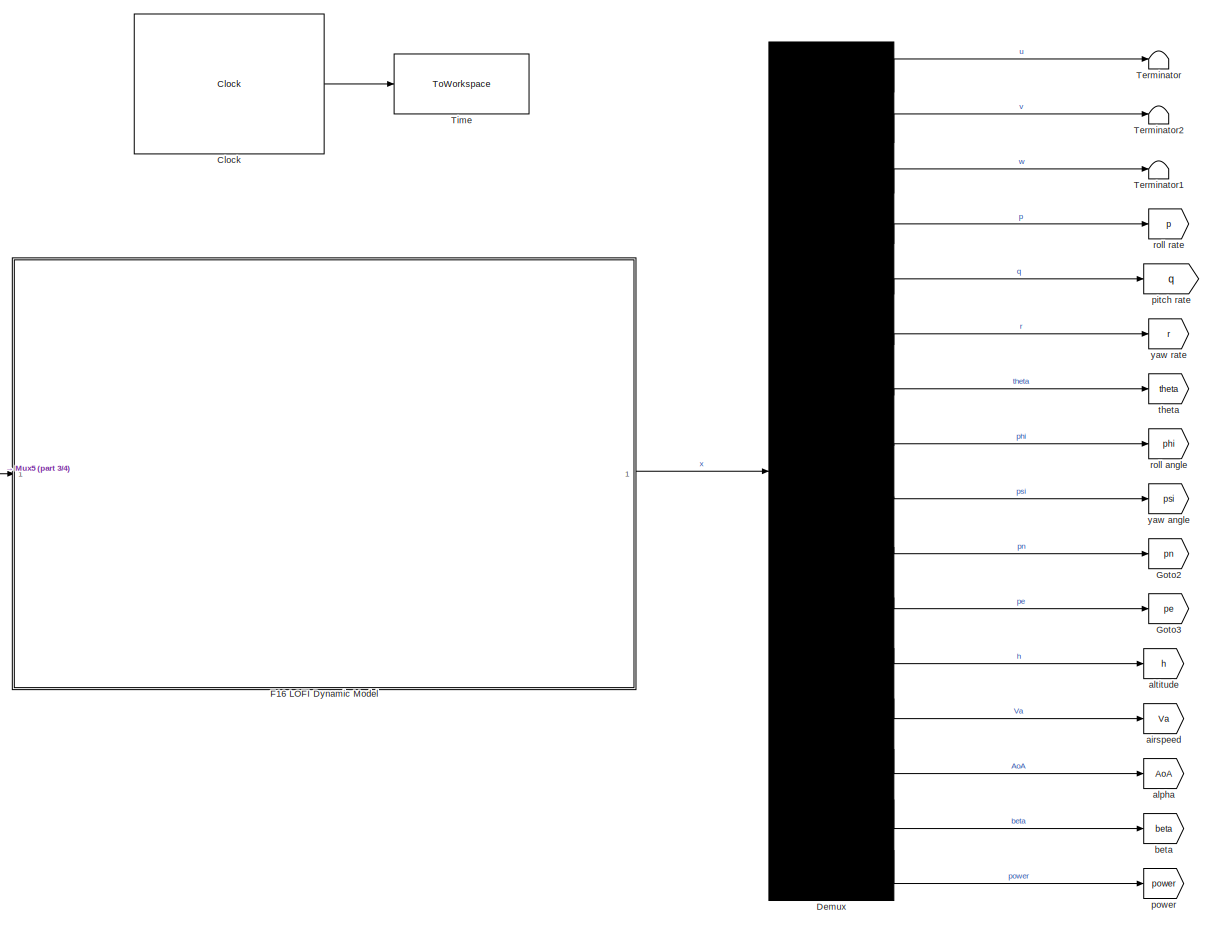
[diagram: root canvas - part 1/4, central region]
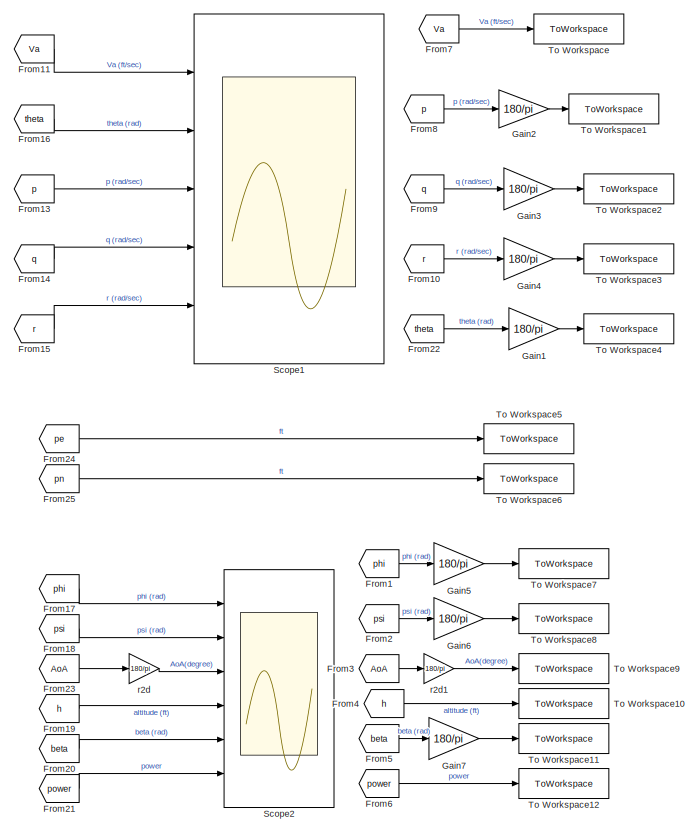
[diagram: root canvas - part 2/4, middle right region]
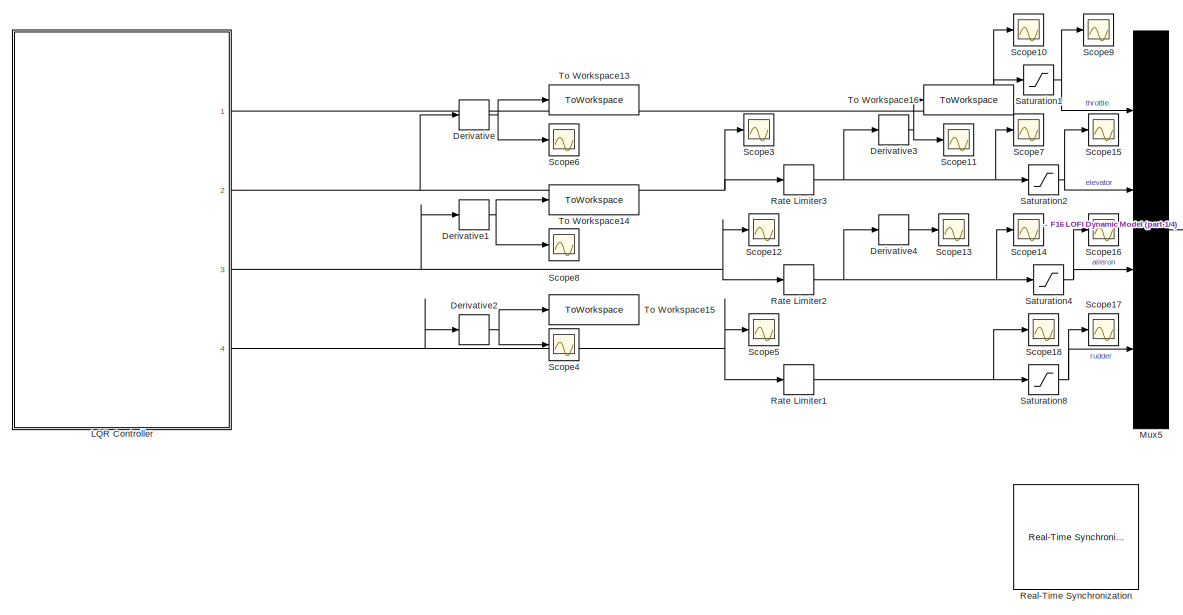
[diagram: root canvas - part 3/4, middle left region]
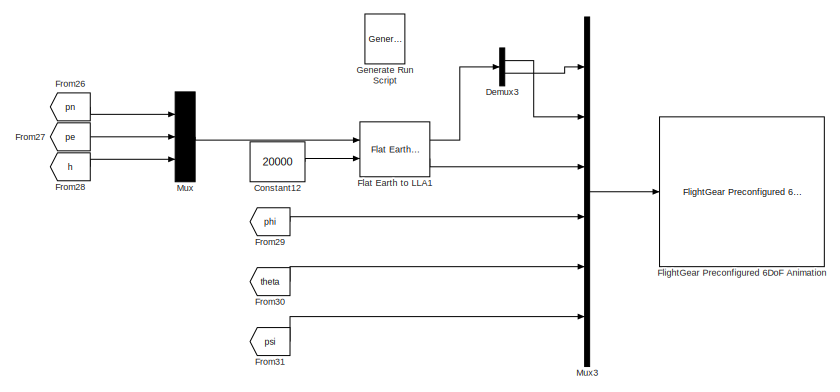
[diagram: root canvas - part 4/4, bottom center region]
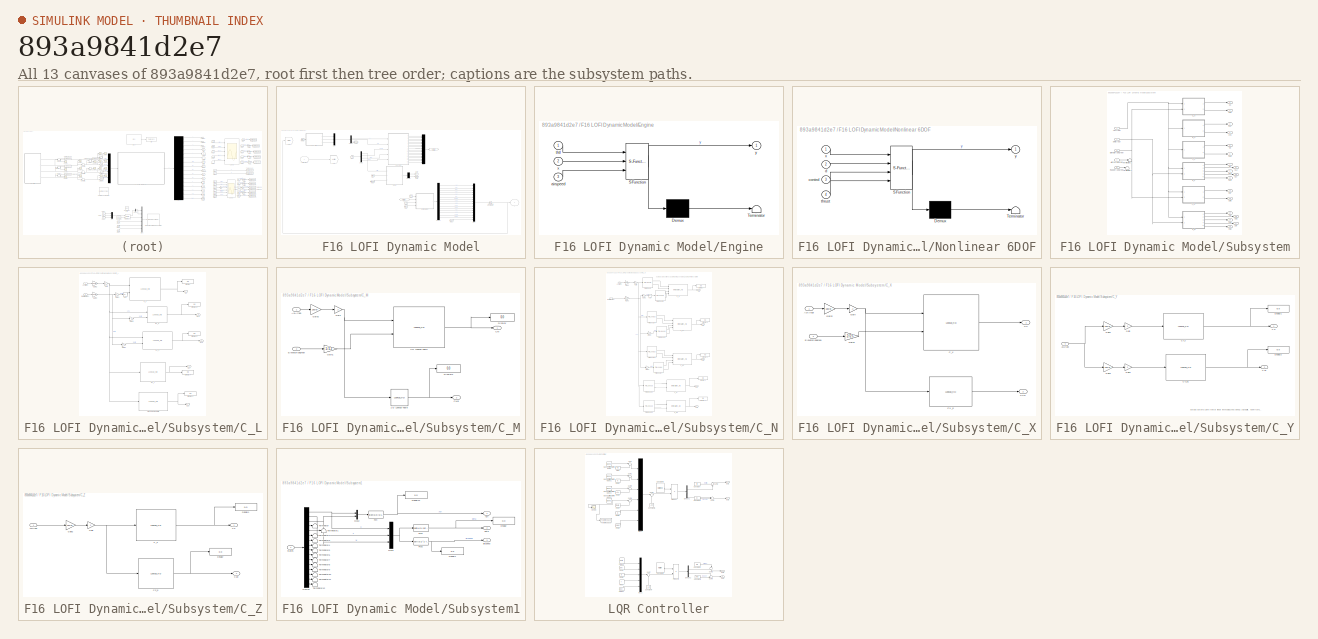
[diagram: thumbnail index - all 13 canvases of the model, root first then tree order]
MODEL slx_893a9841d2e7
KIND model
CONFIG AbsTol = auto
CONFIG EnableMultiTasking = off
CONFIG FixedStep = auto
CONFIG MaxStep = auto
CONFIG MinStep = auto
CONFIG RelTol = 1e-3
CONFIG SampleTimeConstraint = Unconstrained
CONFIG SolverName = VariableStepAuto
CONFIG StartTime = 0.0
CONFIG StopTime = 50
WORKSPACE source: mxarray member
WORKSPACE op_trim2: opcond.OperatingReport (value not decoded)
BLOCK [Clock] Clock
  Decimation = 50
  DisplayTime = on
BLOCK [Constant] Constant12
  Commented = on
  Value = 20000
BLOCK [Demux] Demux
  Outputs = 16
  Ports = [1, 16]
BLOCK [Demux] Demux3
  Commented = on
  Outputs = 2
  Ports = [1, 2]
BLOCK [Derivative] Derivative
BLOCK [Derivative] Derivative1
BLOCK [Derivative] Derivative2
BLOCK [Derivative] Derivative3
BLOCK [Derivative] Derivative4
BLOCK [SubSystem] F16 LOFI Dynamic Model
  Ports = [1, 1]
  RequestExecContextInheritance = off
BLOCK [Demux] F16 LOFI Dynamic Model/Demux
  Ports = [1, 4]
BLOCK [Demux] F16 LOFI Dynamic Model/Demux1
  Outputs = 3
  Ports = [1, 3]
BLOCK [Demux] F16 LOFI Dynamic Model/Demux2
  Outputs = 15
  Ports = [1, 15]
BLOCK [Demux] F16 LOFI Dynamic Model/Demux3
  Outputs = 2
  Ports = [1, 2]
BLOCK [SubSystem] F16 LOFI Dynamic Model/Engine
  ErrorFcn = Stateflow.Translate.translate
  PermitHierarchicalResolution = ExplicitOnly
  Ports = [3, 1]
  RequestExecContextInheritance = off
  SFBlockType = MATLAB Function
  TreatAsAtomicUnit = on
BLOCK [Demux] F16 LOFI Dynamic Model/Engine/ Demux 
  Outputs = 1
  Ports = [1, 1]
BLOCK [S-Function] F16 LOFI Dynamic Model/Engine/ SFunction 
  EnableBusSupport = on
  FunctionName = sf_sfun
  PortCounts = [3 2]
  Ports = [3, 2]
  SFcnIsStateOwnerBlock = off
  SFunctionDeploymentMode = off
  Tag = Stateflow S-Function 1
BLOCK [Terminator] F16 LOFI Dynamic Model/Engine/ Terminator 
BLOCK [Inport] F16 LOFI Dynamic Model/Engine/airspeed
  Port = 3
BLOCK [Inport] F16 LOFI Dynamic Model/Engine/thtl
BLOCK [Inport] F16 LOFI Dynamic Model/Engine/x
  Port = 2
BLOCK [Outport] F16 LOFI Dynamic Model/Engine/y
BLOCK [From] F16 LOFI Dynamic Model/From
  GotoTag = control
BLOCK [From] F16 LOFI Dynamic Model/From1
  GotoTag = control
BLOCK [From] F16 LOFI Dynamic Model/From11
  GotoTag = states
BLOCK [From] F16 LOFI Dynamic Model/From12
  GotoTag = powdot
BLOCK [From] F16 LOFI Dynamic Model/From3
  GotoTag = derivatives
BLOCK [From] F16 LOFI Dynamic Model/From6
  GotoTag = states
BLOCK [From] F16 LOFI Dynamic Model/From7
  GotoTag = states
BLOCK [From] F16 LOFI Dynamic Model/From8
  GotoTag = thrust
BLOCK [From] F16 LOFI Dynamic Model/From9
  GotoTag = airspeed
BLOCK [Goto] F16 LOFI Dynamic Model/Goto1
  GotoTag = derivatives
BLOCK [Goto] F16 LOFI Dynamic Model/Goto3
  GotoTag = states
BLOCK [Goto] F16 LOFI Dynamic Model/Goto4
  GotoTag = thrust
BLOCK [Goto] F16 LOFI Dynamic Model/Goto5
  GotoTag = airspeed
BLOCK [Goto] F16 LOFI Dynamic Model/Goto6
  GotoTag = powdot
BLOCK [Integrator] F16 LOFI Dynamic Model/Integrator ; u ; v ; w ; p ; q ; r ; theta ; phi ; psi ; pn ; pe ; h ; Va ; AoA ; beta ; power
  InitialCondition = state_init
  Ports = [1, 1]
BLOCK [Mux] F16 LOFI Dynamic Model/Mux
  DisplayOption = bar
  Inputs = 18
  Ports = [18, 1]
BLOCK [Mux] F16 LOFI Dynamic Model/Mux1
  DisplayOption = bar
  Inputs = 16
  Ports = [16, 1]
BLOCK [Mux] F16 LOFI Dynamic Model/Mux4
  DisplayOption = bar
  Inputs = 3
  Ports = [3, 1]
BLOCK [SubSystem] F16 LOFI Dynamic Model/Nonlinear 6DOF
  ErrorFcn = Stateflow.Translate.translate
  PermitHierarchicalResolution = ExplicitOnly
  Ports = [4, 1]
  RequestExecContextInheritance = off
  SFBlockType = MATLAB Function
  TreatAsAtomicUnit = on
BLOCK [Demux] F16 LOFI Dynamic Model/Nonlinear 6DOF/ Demux 
  Outputs = 1
  Ports = [1, 1]
BLOCK [S-Function] F16 LOFI Dynamic Model/Nonlinear 6DOF/ SFunction 
  EnableBusSupport = on
  FunctionName = sf_sfun
  PortCounts = [4 2]
  Ports = [4, 2]
  SFcnIsStateOwnerBlock = off
  SFunctionDeploymentMode = off
  Tag = Stateflow S-Function 2
BLOCK [Terminator] F16 LOFI Dynamic Model/Nonlinear 6DOF/ Terminator 
BLOCK [Inport] F16 LOFI Dynamic Model/Nonlinear 6DOF/control
  Port = 3
BLOCK [Inport] F16 LOFI Dynamic Model/Nonlinear 6DOF/d
  Port = 2
BLOCK [Inport] F16 LOFI Dynamic Model/Nonlinear 6DOF/thrust
  Port = 4
BLOCK [Inport] F16 LOFI Dynamic Model/Nonlinear 6DOF/x
BLOCK [Outport] F16 LOFI Dynamic Model/Nonlinear 6DOF/y
BLOCK [SubSystem] F16 LOFI Dynamic Model/Subsystem
  Ports = [5, 18]
  RequestExecContextInheritance = off
BLOCK [Inport] F16 LOFI Dynamic Model/Subsystem/Aileron(degree)
  Port = 4
BLOCK [Inport] F16 LOFI Dynamic Model/Subsystem/AoA(rad)
BLOCK [Outport] F16 LOFI Dynamic Model/Subsystem/CL
  Port = 7
BLOCK [Outport] F16 LOFI Dynamic Model/Subsystem/CL2
  Port = 8
BLOCK [Outport] F16 LOFI Dynamic Model/Subsystem/CL3
  Port = 9
BLOCK [Outport] F16 LOFI Dynamic Model/Subsystem/CLp
  Port = 11
BLOCK [Outport] F16 LOFI Dynamic Model/Subsystem/CLr
  Port = 10
BLOCK [Outport] F16 LOFI Dynamic Model/Subsystem/CM
  Port = 12
BLOCK [Outport] F16 LOFI Dynamic Model/Subsystem/CMq
  Port = 13
BLOCK [Outport] F16 LOFI Dynamic Model/Subsystem/CN
  Port = 14
BLOCK [Outport] F16 LOFI Dynamic Model/Subsystem/CN2
  Port = 15
BLOCK [Outport] F16 LOFI Dynamic Model/Subsystem/CN3
  Port = 16
BLOCK [Outport] F16 LOFI Dynamic Model/Subsystem/CNp
  Port = 18
BLOCK [Outport] F16 LOFI Dynamic Model/Subsystem/CNr
  Port = 17
BLOCK [Outport] F16 LOFI Dynamic Model/Subsystem/CX
BLOCK [Outport] F16 LOFI Dynamic Model/Subsystem/CXq
  Port = 2
BLOCK [Outport] F16 LOFI Dynamic Model/Subsystem/CYp
  Port = 4
BLOCK [Outport] F16 LOFI Dynamic Model/Subsystem/CYr
  Port = 3
BLOCK [Outport] F16 LOFI Dynamic Model/Subsystem/CZ
  Port = 5
BLOCK [Outport] F16 LOFI Dynamic Model/Subsystem/CZq
  Port = 6
BLOCK [SubSystem] F16 LOFI Dynamic Model/Subsystem/C_L
  Ports = [2, 5]
  RequestExecContextInheritance = off
BLOCK [Lookup_n-D] F16 LOFI Dynamic Model/Subsystem/C_L/1-D Lookup Table
  BreakpointsForDimension1 = [-2:9]
  InputPortMap = u0
  InternalRulePriority = Speed
  NumberOfTableDimensions = 1
  Ports = [1, 1]
  RndMeth = Simplest
  Table = CLp
BLOCK [Abs] F16 LOFI Dynamic Model/Subsystem/C_L/Abs
  SaturateOnIntegerOverflow = off
BLOCK [Inport] F16 LOFI Dynamic Model/Subsystem/C_L/AoA(rad)
BLOCK [Inport] F16 LOFI Dynamic Model/Subsystem/C_L/Beta(radian)
  Port = 2
BLOCK [Outport] F16 LOFI Dynamic Model/Subsystem/C_L/CL
BLOCK [Outport] F16 LOFI Dynamic Model/Subsystem/C_L/CL2
  Port = 2
BLOCK [Outport] F16 LOFI Dynamic Model/Subsystem/C_L/CL3
  Port = 3
BLOCK [Lookup_n-D] F16 LOFI Dynamic Model/Subsystem/C_L/CL_2
  BreakpointsForDimension1 = [-2:9]
  BreakpointsForDimension2 = [-3:3]
  InputPortMap = u0,u1
  InternalRulePriority = Speed
  Ports = [2, 1]
  RndMeth = Simplest
  Table = CL2
BLOCK [Lookup_n-D] F16 LOFI Dynamic Model/Subsystem/C_L/CL_3
  BreakpointsForDimension1 = [-2:9]
  BreakpointsForDimension2 = [-3:3]
  InputPortMap = u0,u1
  InternalRulePriority = Speed
  Ports = [2, 1]
  RndMeth = Simplest
  Table = CL3
BLOCK [Lookup_n-D] F16 LOFI Dynamic Model/Subsystem/C_L/CL_r
  BreakpointsForDimension1 = [-2:9]
  InputPortMap = u0
  InternalRulePriority = Speed
  NumberOfTableDimensions = 1
  Ports = [1, 1]
  RndMeth = Simplest
  Table = CLr
BLOCK [Outport] F16 LOFI Dynamic Model/Subsystem/C_L/CLp
  Port = 5
BLOCK [Outport] F16 LOFI Dynamic Model/Subsystem/C_L/CLr
  Port = 4
BLOCK [Lookup_n-D] F16 LOFI Dynamic Model/Subsystem/C_L/C_L
  BreakpointsForDimension1 = [-2:9]
  BreakpointsForDimension2 = [0:6]
  InputPortMap = u0,u1
  InternalRulePriority = Speed
  Ports = [2, 1]
  RndMeth = Simplest
  Table = CL
BLOCK [Display] F16 LOFI Dynamic Model/Subsystem/C_L/Display
  Decimation = 1
  Ports = [1]
BLOCK [Display] F16 LOFI Dynamic Model/Subsystem/C_L/Display1
  Decimation = 1
  Ports = [1]
BLOCK [Display] F16 LOFI Dynamic Model/Subsystem/C_L/Display3
  Decimation = 1
  Ports = [1]
BLOCK [Display] F16 LOFI Dynamic Model/Subsystem/C_L/Display4
  Decimation = 1
  Ports = [1]
BLOCK [Display] F16 LOFI Dynamic Model/Subsystem/C_L/Display5
  Decimation = 1
  Ports = [1]
BLOCK [Gain] F16 LOFI Dynamic Model/Subsystem/C_L/Gain
  Gain = .2
BLOCK [Gain] F16 LOFI Dynamic Model/Subsystem/C_L/Gain1
  Gain = .2
BLOCK [Gain] F16 LOFI Dynamic Model/Subsystem/C_L/Gain2
  Gain = 180/pi
BLOCK [Gain] F16 LOFI Dynamic Model/Subsystem/C_L/Gain3
  Gain = 180/pi
BLOCK [Gain] F16 LOFI Dynamic Model/Subsystem/C_L/Gain4
  Gain = .1
BLOCK [Gain] F16 LOFI Dynamic Model/Subsystem/C_L/Gain5
  Gain = .1
BLOCK [SubSystem] F16 LOFI Dynamic Model/Subsystem/C_M
  Ports = [2, 2]
  RequestExecContextInheritance = off
BLOCK [Lookup_n-D] F16 LOFI Dynamic Model/Subsystem/C_M/1-D Lookup Table
  BreakpointsForDimension1 = [-2:9]
  InputPortMap = u0
  InternalRulePriority = Speed
  NumberOfTableDimensions = 1
  Ports = [1, 1]
  RndMeth = Simplest
  Table = CMq
BLOCK [Lookup_n-D] F16 LOFI Dynamic Model/Subsystem/C_M/2-D Lookup Table
  BreakpointsForDimension1 = [-2:9]
  BreakpointsForDimension2 = [-2:2]
  InputPortMap = u0,u1
  InternalRulePriority = Speed
  Ports = [2, 1]
  RndMeth = Simplest
  Table = CM
BLOCK [Inport] F16 LOFI Dynamic Model/Subsystem/C_M/AoA(rad)
BLOCK [Outport] F16 LOFI Dynamic Model/Subsystem/C_M/CM
BLOCK [Outport] F16 LOFI Dynamic Model/Subsystem/C_M/CMq
  Port = 2
BLOCK [Display] F16 LOFI Dynamic Model/Subsystem/C_M/Display
  Decimation = 1
  Ports = [1]
BLOCK [Display] F16 LOFI Dynamic Model/Subsystem/C_M/Display2
  Decimation = 1
  Ports = [1]
BLOCK [Inport] F16 LOFI Dynamic Model/Subsystem/C_M/Elevator(degree)
  Port = 2
BLOCK [Gain] F16 LOFI Dynamic Model/Subsystem/C_M/Gain
  Gain = .2
BLOCK [Gain] F16 LOFI Dynamic Model/Subsystem/C_M/Gain1
  Gain = 1/12
BLOCK [Gain] F16 LOFI Dynamic Model/Subsystem/C_M/Gain2
  Gain = 180/pi
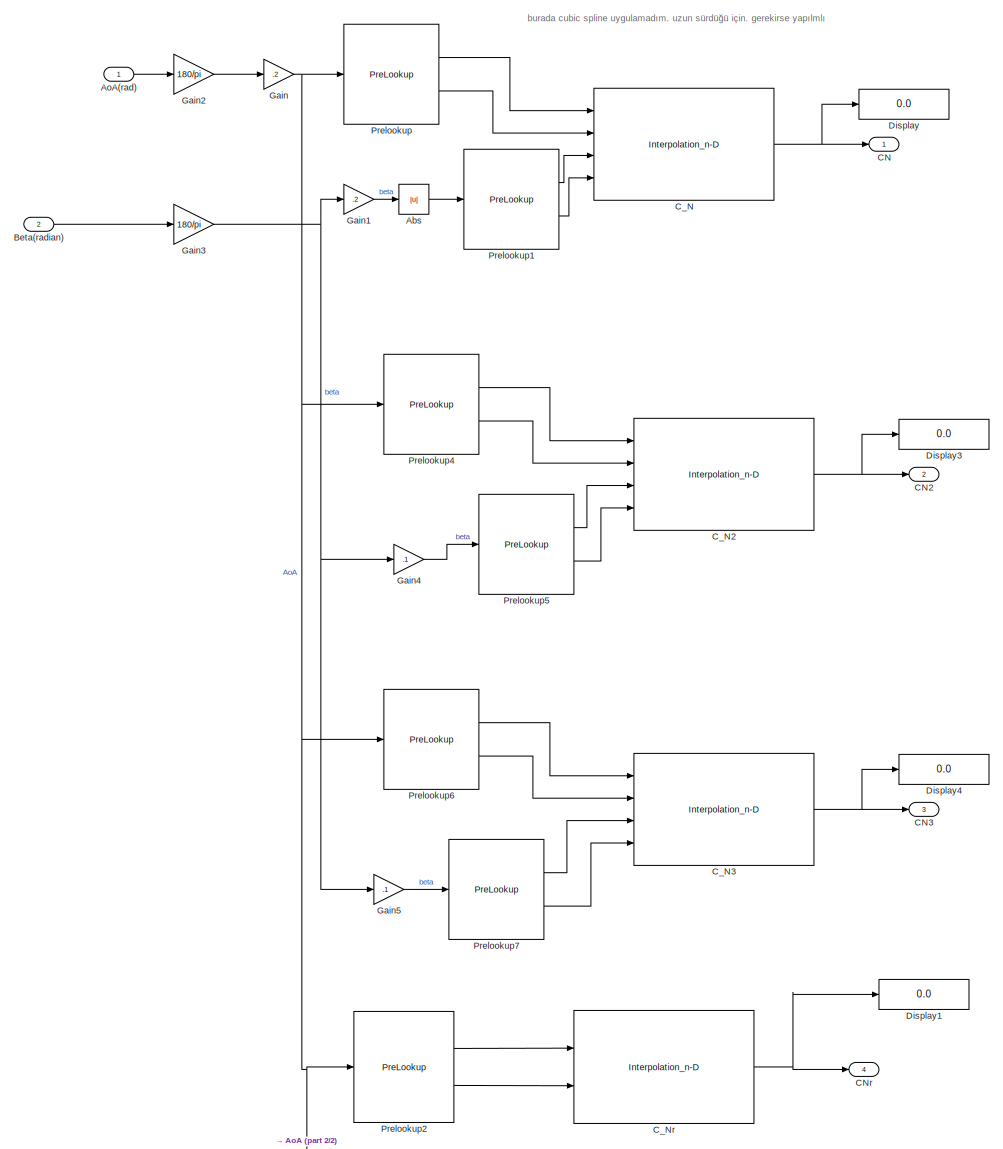
[diagram: F16 LOFI Dynamic Model/Subsystem/C_N - part 1/2, most of the canvas]
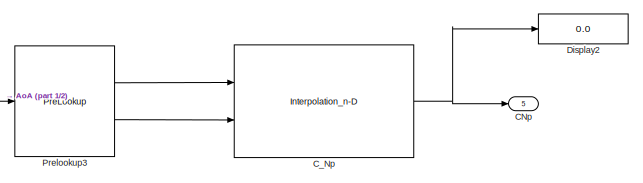
[diagram: F16 LOFI Dynamic Model/Subsystem/C_N - part 2/2, bottom center region]
BLOCK [SubSystem] F16 LOFI Dynamic Model/Subsystem/C_N
  Ports = [2, 5]
  RequestExecContextInheritance = off
BLOCK [Abs] F16 LOFI Dynamic Model/Subsystem/C_N/Abs
  SaturateOnIntegerOverflow = off
BLOCK [Inport] F16 LOFI Dynamic Model/Subsystem/C_N/AoA(rad)
BLOCK [Inport] F16 LOFI Dynamic Model/Subsystem/C_N/Beta(radian)
  Port = 2
BLOCK [Outport] F16 LOFI Dynamic Model/Subsystem/C_N/CN
BLOCK [Outport] F16 LOFI Dynamic Model/Subsystem/C_N/CN2
  Port = 2
BLOCK [Outport] F16 LOFI Dynamic Model/Subsystem/C_N/CN3
  Port = 3
BLOCK [Outport] F16 LOFI Dynamic Model/Subsystem/C_N/CNp
  Port = 5
BLOCK [Outport] F16 LOFI Dynamic Model/Subsystem/C_N/CNr
  Port = 4
BLOCK [Interpolation_n-D] F16 LOFI Dynamic Model/Subsystem/C_N/C_N
  InputPortMap = u0,u1,u2,u3
  IntermediateResultsDataTypeStr = Inherit: Inherit via internal rule
  InternalRulePriority = Speed
  Ports = [4, 1]
  Table = CN
BLOCK [Interpolation_n-D] F16 LOFI Dynamic Model/Subsystem/C_N/C_N2
  InputPortMap = u0,u1,u2,u3
  IntermediateResultsDataTypeStr = Inherit: Inherit via internal rule
  InternalRulePriority = Speed
  Ports = [4, 1]
  Table = CN2
BLOCK [Interpolation_n-D] F16 LOFI Dynamic Model/Subsystem/C_N/C_N3
  InputPortMap = u0,u1,u2,u3
  IntermediateResultsDataTypeStr = Inherit: Inherit via internal rule
  InternalRulePriority = Speed
  Ports = [4, 1]
  Table = CN3
BLOCK [Interpolation_n-D] F16 LOFI Dynamic Model/Subsystem/C_N/C_Np
  InputPortMap = u0,u1
  IntermediateResultsDataTypeStr = Inherit: Inherit via internal rule
  InternalRulePriority = Speed
  NumberOfTableDimensions = 1
  Ports = [2, 1]
  Table = CNp
BLOCK [Interpolation_n-D] F16 LOFI Dynamic Model/Subsystem/C_N/C_Nr
  InputPortMap = u0,u1
  IntermediateResultsDataTypeStr = Inherit: Inherit via internal rule
  InternalRulePriority = Speed
  NumberOfTableDimensions = 1
  Ports = [2, 1]
  Table = CNr
BLOCK [Display] F16 LOFI Dynamic Model/Subsystem/C_N/Display
  Decimation = 1
  Ports = [1]
BLOCK [Display] F16 LOFI Dynamic Model/Subsystem/C_N/Display1
  Decimation = 1
  Ports = [1]
BLOCK [Display] F16 LOFI Dynamic Model/Subsystem/C_N/Display2
  Decimation = 1
  Ports = [1]
BLOCK [Display] F16 LOFI Dynamic Model/Subsystem/C_N/Display3
  Decimation = 1
  Ports = [1]
BLOCK [Display] F16 LOFI Dynamic Model/Subsystem/C_N/Display4
  Decimation = 1
  Ports = [1]
BLOCK [Gain] F16 LOFI Dynamic Model/Subsystem/C_N/Gain
  Gain = .2
BLOCK [Gain] F16 LOFI Dynamic Model/Subsystem/C_N/Gain1
  Gain = .2
BLOCK [Gain] F16 LOFI Dynamic Model/Subsystem/C_N/Gain2
  Gain = 180/pi
BLOCK [Gain] F16 LOFI Dynamic Model/Subsystem/C_N/Gain3
  Gain = 180/pi
BLOCK [Gain] F16 LOFI Dynamic Model/Subsystem/C_N/Gain4
  Gain = .1
BLOCK [Gain] F16 LOFI Dynamic Model/Subsystem/C_N/Gain5
  Gain = .1
BLOCK [PreLookup] F16 LOFI Dynamic Model/Subsystem/C_N/Prelookup
  BreakpointsData = AoA
  ExtrapMethod = Linear
  InputPortMap = u0
  Ports = [1, 2]
BLOCK [PreLookup] F16 LOFI Dynamic Model/Subsystem/C_N/Prelookup1
  BreakpointsData = beta
  ExtrapMethod = Linear
  InputPortMap = u0
  Ports = [1, 2]
BLOCK [PreLookup] F16 LOFI Dynamic Model/Subsystem/C_N/Prelookup2
  BreakpointsData = AoA
  ExtrapMethod = Linear
  InputPortMap = u0
  Ports = [1, 2]
BLOCK [PreLookup] F16 LOFI Dynamic Model/Subsystem/C_N/Prelookup3
  BreakpointsData = AoA
  ExtrapMethod = Linear
  InputPortMap = u0
  Ports = [1, 2]
BLOCK [PreLookup] F16 LOFI Dynamic Model/Subsystem/C_N/Prelookup4
  BreakpointsData = AoA
  ExtrapMethod = Linear
  InputPortMap = u0
  Ports = [1, 2]
BLOCK [PreLookup] F16 LOFI Dynamic Model/Subsystem/C_N/Prelookup5
  BreakpointsData = [-3:3]
  ExtrapMethod = Linear
  InputPortMap = u0
  Ports = [1, 2]
BLOCK [PreLookup] F16 LOFI Dynamic Model/Subsystem/C_N/Prelookup6
  BreakpointsData = AoA
  ExtrapMethod = Linear
  InputPortMap = u0
  Ports = [1, 2]
BLOCK [PreLookup] F16 LOFI Dynamic Model/Subsystem/C_N/Prelookup7
  BreakpointsData = [-3:3]
  ExtrapMethod = Linear
  InputPortMap = u0
  Ports = [1, 2]
BLOCK [SubSystem] F16 LOFI Dynamic Model/Subsystem/C_X
  Ports = [2, 2]
  RequestExecContextInheritance = off
BLOCK [Inport] F16 LOFI Dynamic Model/Subsystem/C_X/AoA(rad)
BLOCK [Outport] F16 LOFI Dynamic Model/Subsystem/C_X/CX
BLOCK [Lookup_n-D] F16 LOFI Dynamic Model/Subsystem/C_X/CX_q
  BreakpointsForDimension1 = [-2:9]
  InputPortMap = u0
  InternalRulePriority = Speed
  NumberOfTableDimensions = 1
  Ports = [1, 1]
  RndMeth = Simplest
  Table = CXq
BLOCK [Outport] F16 LOFI Dynamic Model/Subsystem/C_X/CXq
  Port = 2
BLOCK [Lookup_n-D] F16 LOFI Dynamic Model/Subsystem/C_X/C_X
  BreakpointsForDimension1 = [-2:9]
  BreakpointsForDimension2 = [-2:2]
  InputPortMap = u0,u1
  InternalRulePriority = Speed
  Ports = [2, 1]
  RndMeth = Simplest
  Table = CX
BLOCK [Inport] F16 LOFI Dynamic Model/Subsystem/C_X/Elevator(degree)
  Port = 2
BLOCK [Gain] F16 LOFI Dynamic Model/Subsystem/C_X/Gain
  Gain = .2
BLOCK [Gain] F16 LOFI Dynamic Model/Subsystem/C_X/Gain1
  Gain = 2/25
BLOCK [Gain] F16 LOFI Dynamic Model/Subsystem/C_X/Gain2
  Gain = 180/pi
BLOCK [SubSystem] F16 LOFI Dynamic Model/Subsystem/C_Y
  Ports = [1, 2]
  RequestExecContextInheritance = off
BLOCK [Inport] F16 LOFI Dynamic Model/Subsystem/C_Y/AoA(rad)
BLOCK [Lookup_n-D] F16 LOFI Dynamic Model/Subsystem/C_Y/CY_p1
  BreakpointsForDimension1 = [-2:9]
  InputPortMap = u0
  InternalRulePriority = Speed
  NumberOfTableDimensions = 1
  Ports = [1, 1]
  RndMeth = Simplest
  Table = CYp
BLOCK [Lookup_n-D] F16 LOFI Dynamic Model/Subsystem/C_Y/CY_r
  BreakpointsForDimension1 = [-2:9]
  InputPortMap = u0
  InternalRulePriority = Speed
  NumberOfTableDimensions = 1
  Ports = [1, 1]
  RndMeth = Simplest
  Table = CYr
BLOCK [Outport] F16 LOFI Dynamic Model/Subsystem/C_Y/CYp
  Port = 2
BLOCK [Outport] F16 LOFI Dynamic Model/Subsystem/C_Y/CYr
BLOCK [Display] F16 LOFI Dynamic Model/Subsystem/C_Y/Display1
  Decimation = 1
  Ports = [1]
BLOCK [Display] F16 LOFI Dynamic Model/Subsystem/C_Y/Display2
  Decimation = 1
  Ports = [1]
BLOCK [Gain] F16 LOFI Dynamic Model/Subsystem/C_Y/Gain
  Gain = .2
BLOCK [Gain] F16 LOFI Dynamic Model/Subsystem/C_Y/Gain1
  Gain = .2
BLOCK [Gain] F16 LOFI Dynamic Model/Subsystem/C_Y/Gain2
  Gain = 180/pi
BLOCK [Gain] F16 LOFI Dynamic Model/Subsystem/C_Y/Gain3
  Gain = 180/pi
BLOCK [SubSystem] F16 LOFI Dynamic Model/Subsystem/C_Z
  Ports = [1, 2]
  RequestExecContextInheritance = off
BLOCK [Inport] F16 LOFI Dynamic Model/Subsystem/C_Z/AoA(rad)
BLOCK [Outport] F16 LOFI Dynamic Model/Subsystem/C_Z/CZ
BLOCK [Lookup_n-D] F16 LOFI Dynamic Model/Subsystem/C_Z/CZ_q
  BreakpointsForDimension1 = [-2:9]
  InputPortMap = u0
  InternalRulePriority = Speed
  NumberOfTableDimensions = 1
  Ports = [1, 1]
  RndMeth = Simplest
  Table = CZq
BLOCK [Outport] F16 LOFI Dynamic Model/Subsystem/C_Z/CZq
  Port = 2
BLOCK [Lookup_n-D] F16 LOFI Dynamic Model/Subsystem/C_Z/C_Z
  BreakpointsForDimension1 = [-2:9]
  InputPortMap = u0
  InternalRulePriority = Speed
  NumberOfTableDimensions = 1
  Ports = [1, 1]
  RndMeth = Simplest
  Table = CZ
BLOCK [Display] F16 LOFI Dynamic Model/Subsystem/C_Z/Display
  Decimation = 1
  Ports = [1]
BLOCK [Display] F16 LOFI Dynamic Model/Subsystem/C_Z/Display1
  Decimation = 1
  Ports = [1]
BLOCK [Gain] F16 LOFI Dynamic Model/Subsystem/C_Z/Gain
  Gain = .2
BLOCK [Gain] F16 LOFI Dynamic Model/Subsystem/C_Z/Gain2
  Gain = 180/pi
BLOCK [Inport] F16 LOFI Dynamic Model/Subsystem/Elevator(degree)
  Port = 3
BLOCK [Inport] F16 LOFI Dynamic Model/Subsystem/Rudder(degree)
  Port = 5
BLOCK [Terminator] F16 LOFI Dynamic Model/Subsystem/Terminator1
BLOCK [Terminator] F16 LOFI Dynamic Model/Subsystem/Terminator2
BLOCK [Inport] F16 LOFI Dynamic Model/Subsystem/beta(rad)
  Port = 2
BLOCK [SubSystem] F16 LOFI Dynamic Model/Subsystem1
  Ports = [1, 3]
  RequestExecContextInheritance = off
BLOCK [Outport] F16 LOFI Dynamic Model/Subsystem1/AoA
BLOCK [Demux] F16 LOFI Dynamic Model/Subsystem1/Demux
  Outputs = 16
  Ports = [1, 16]
BLOCK [Display] F16 LOFI Dynamic Model/Subsystem1/Display
  Decimation = 1
  Ports = [1]
BLOCK [Display] F16 LOFI Dynamic Model/Subsystem1/Display1
  Decimation = 1
  Ports = [1]
BLOCK [Display] F16 LOFI Dynamic Model/Subsystem1/Display13
  Decimation = 1
  Ports = [1]
BLOCK [Fcn] F16 LOFI Dynamic Model/Subsystem1/Fcn
  Expr = atan(u(2)/u(1))
  NameLocation = top
BLOCK [Fcn] F16 LOFI Dynamic Model/Subsystem1/Fcn1
  Expr = asin(u(2)/sqrt(u(1)^2 + u(2)^2 + u(3)^2))
BLOCK [Fcn] F16 LOFI Dynamic Model/Subsystem1/Fcn2
  Expr = sqrt(u(1)^2 + u(2)^2 + u(3)^2)
BLOCK [Mux] F16 LOFI Dynamic Model/Subsystem1/Mux2
  DisplayOption = bar
  Inputs = 2
  NameLocation = top
  Ports = [2, 1]
BLOCK [Mux] F16 LOFI Dynamic Model/Subsystem1/Mux3
  DisplayOption = bar
  Inputs = 3
  Ports = [3, 1]
BLOCK [Terminator] F16 LOFI Dynamic Model/Subsystem1/Terminator
BLOCK [Terminator] F16 LOFI Dynamic Model/Subsystem1/Terminator1
BLOCK [Terminator] F16 LOFI Dynamic Model/Subsystem1/Terminator10
BLOCK [Terminator] F16 LOFI Dynamic Model/Subsystem1/Terminator11
BLOCK [Terminator] F16 LOFI Dynamic Model/Subsystem1/Terminator12
BLOCK [Terminator] F16 LOFI Dynamic Model/Subsystem1/Terminator2
BLOCK [Terminator] F16 LOFI Dynamic Model/Subsystem1/Terminator3
BLOCK [Terminator] F16 LOFI Dynamic Model/Subsystem1/Terminator4
BLOCK [Terminator] F16 LOFI Dynamic Model/Subsystem1/Terminator5
BLOCK [Terminator] F16 LOFI Dynamic Model/Subsystem1/Terminator6
BLOCK [Terminator] F16 LOFI Dynamic Model/Subsystem1/Terminator7
BLOCK [Terminator] F16 LOFI Dynamic Model/Subsystem1/Terminator8
BLOCK [Terminator] F16 LOFI Dynamic Model/Subsystem1/Terminator9
BLOCK [Outport] F16 LOFI Dynamic Model/Subsystem1/airspeed
  Port = 3
BLOCK [Outport] F16 LOFI Dynamic Model/Subsystem1/beta
  Port = 2
BLOCK [Inport] F16 LOFI Dynamic Model/Subsystem1/states
BLOCK [Inport] F16 LOFI Dynamic Model/control surfaces
BLOCK [Goto] F16 LOFI Dynamic Model/goto
  GotoTag = control
BLOCK [Outport] F16 LOFI Dynamic Model/x
BLOCK [Reference] Flat Earth to LLA1  REF=aerolibtransform2/Flat Earth to LLA
  Commented = on
  Ports = [2, 2]
  SourceBlock = aerolibtransform2/Flat Earth to LLA
  SourceProductBaseCode = AE
  SourceType = Flat Earth to LLA
BLOCK [Reference] FlightGear Preconfigured 6DoF Animation  REF=aerolibfltsims/FlightGear
Preconfigured
6DoF Animation
  Commented = on
  Ports = [1]
  SourceBlock = aerolibfltsims/FlightGear\nPreconfigured\n6DoF Animation
  SourceProductBaseCode = AE
  SourceType = FlightGearQuick6DoFAnimation
BLOCK [From] From1
  GotoTag = phi
  TagVisibility = global
BLOCK [From] From10
  GotoTag = r
  TagVisibility = global
BLOCK [From] From11
  GotoTag = Va
  TagVisibility = global
BLOCK [From] From13
  GotoTag = p
  TagVisibility = global
BLOCK [From] From14
  GotoTag = q
  TagVisibility = global
BLOCK [From] From15
  GotoTag = r
  TagVisibility = global
BLOCK [From] From16
  GotoTag = theta
  TagVisibility = global
BLOCK [From] From17
  GotoTag = phi
  TagVisibility = global
BLOCK [From] From18
  GotoTag = psi
  TagVisibility = global
BLOCK [From] From19
  GotoTag = h
  TagVisibility = global
BLOCK [From] From2
  GotoTag = psi
  TagVisibility = global
BLOCK [From] From20
  GotoTag = beta
  TagVisibility = global
BLOCK [From] From21
  GotoTag = power
  TagVisibility = global
BLOCK [From] From22
  GotoTag = theta
  TagVisibility = global
BLOCK [From] From23
  GotoTag = AoA
  TagVisibility = global
BLOCK [From] From24
  GotoTag = pe
BLOCK [From] From25
  GotoTag = pn
BLOCK [From] From26
  Commented = on
  GotoTag = pn
BLOCK [From] From27
  Commented = on
  GotoTag = pe
BLOCK [From] From28
  Commented = on
  GotoTag = h
  TagVisibility = global
BLOCK [From] From29
  Commented = on
  GotoTag = phi
  TagVisibility = global
BLOCK [From] From3
  GotoTag = AoA
  TagVisibility = global
BLOCK [From] From30
  Commented = on
  GotoTag = theta
  TagVisibility = global
BLOCK [From] From31
  Commented = on
  GotoTag = psi
  TagVisibility = global
BLOCK [From] From4
  GotoTag = h
  TagVisibility = global
BLOCK [From] From5
  GotoTag = beta
  TagVisibility = global
BLOCK [From] From6
  GotoTag = power
  TagVisibility = global
BLOCK [From] From7
  GotoTag = Va
  TagVisibility = global
BLOCK [From] From8
  GotoTag = p
  TagVisibility = global
BLOCK [From] From9
  GotoTag = q
  TagVisibility = global
BLOCK [Gain] Gain1
  Gain = 180/pi
BLOCK [Gain] Gain2
  Gain = 180/pi
BLOCK [Gain] Gain3
  Gain = 180/pi
BLOCK [Gain] Gain4
  Gain = 180/pi
BLOCK [Gain] Gain5
  Gain = 180/pi
BLOCK [Gain] Gain6
  Gain = 180/pi
BLOCK [Gain] Gain7
  Gain = 180/pi
BLOCK [Reference] Generate Run Script  REF=aerolibfltsims/Generate
Run Script
  Commented = on
  Ports = []
  SourceBlock = aerolibfltsims/Generate\nRun Script
  SourceProductBaseCode = AE
  SourceType = Generate FlightGear Run Script
BLOCK [Goto] Goto2
  GotoTag = pn
BLOCK [Goto] Goto3
  GotoTag = pe
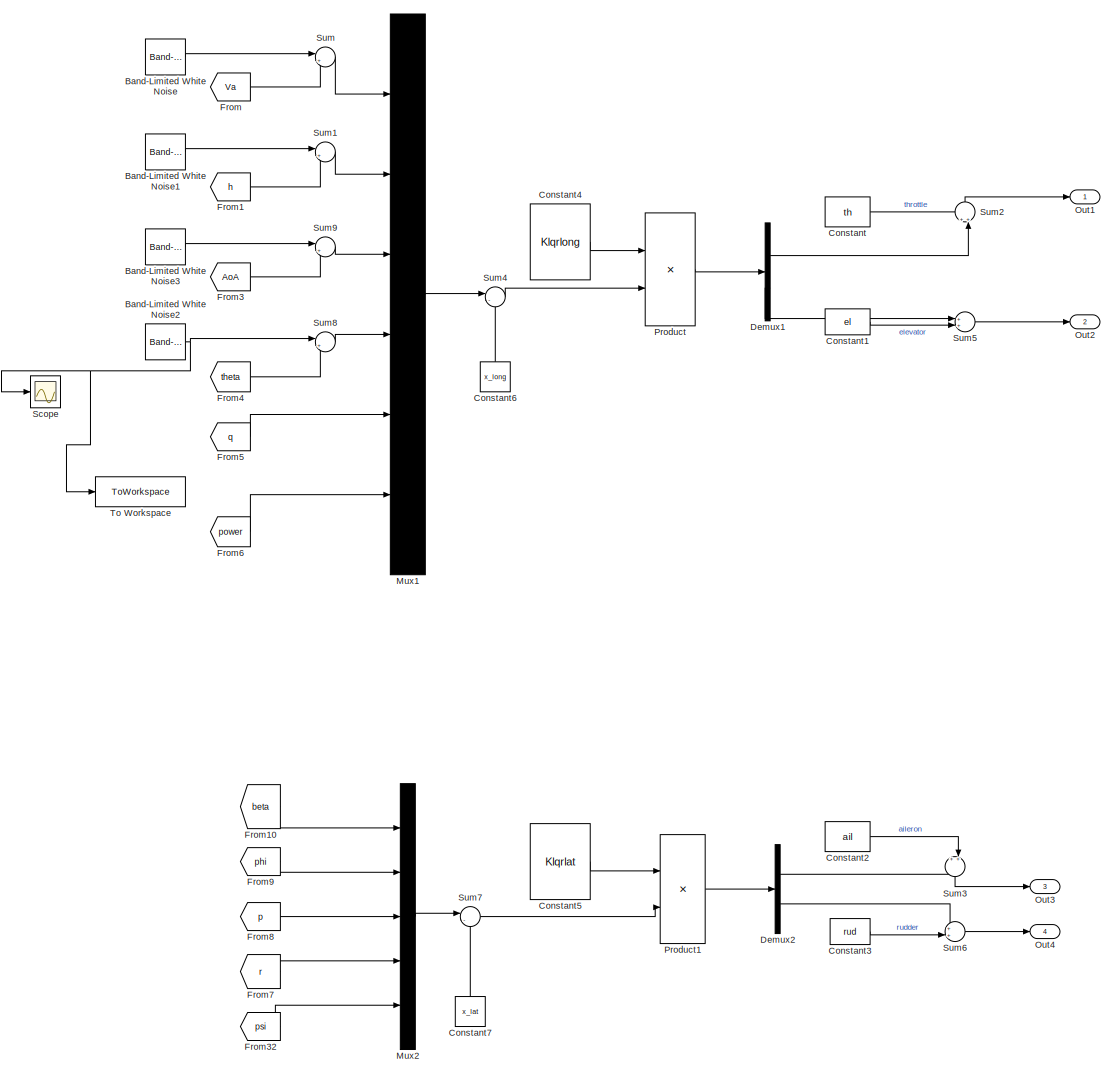
[diagram: LQR Controller - part 1/1, most of the canvas]
BLOCK [SubSystem] LQR Controller
  Ports = [0, 4]
  RequestExecContextInheritance = off
BLOCK [Reference] LQR Controller/Band-Limited White Noise  REF=simulink/Sources/Band-Limited
White Noise
  Ports = [0, 1]
  SourceBlock = simulink/Sources/Band-Limited\nWhite Noise
  SourceProductBaseCode = SL
  SourceType = Band-Limited White Noise.
BLOCK [Reference] LQR Controller/Band-Limited White Noise1  REF=simulink/Sources/Band-Limited
White Noise
  Ports = [0, 1]
  SourceBlock = simulink/Sources/Band-Limited\nWhite Noise
  SourceProductBaseCode = SL
  SourceType = Band-Limited White Noise.
BLOCK [Reference] LQR Controller/Band-Limited White Noise2  REF=simulink/Sources/Band-Limited
White Noise
  Ports = [0, 1]
  SourceBlock = simulink/Sources/Band-Limited\nWhite Noise
  SourceProductBaseCode = SL
  SourceType = Band-Limited White Noise.
BLOCK [Reference] LQR Controller/Band-Limited White Noise3  REF=simulink/Sources/Band-Limited
White Noise
  Ports = [0, 1]
  SourceBlock = simulink/Sources/Band-Limited\nWhite Noise
  SourceProductBaseCode = SL
  SourceType = Band-Limited White Noise.
BLOCK [Constant] LQR Controller/Constant
  Value = th
BLOCK [Constant] LQR Controller/Constant1
  Value = el
BLOCK [Constant] LQR Controller/Constant2
  Value = ail
BLOCK [Constant] LQR Controller/Constant3
  Value = rud
BLOCK [Constant] LQR Controller/Constant4
  Value = Klqrlong
BLOCK [Constant] LQR Controller/Constant5
  Value = Klqrlat
BLOCK [Constant] LQR Controller/Constant6
  NameLocation = right
  Value = x_long
BLOCK [Constant] LQR Controller/Constant7
  NameLocation = right
  Value = x_lat
BLOCK [Demux] LQR Controller/Demux1
  Outputs = 2
  Ports = [1, 2]
BLOCK [Demux] LQR Controller/Demux2
  Outputs = 2
  Ports = [1, 2]
BLOCK [From] LQR Controller/From
  GotoTag = Va
  TagVisibility = global
BLOCK [From] LQR Controller/From1
  GotoTag = h
  TagVisibility = global
BLOCK [From] LQR Controller/From10
  GotoTag = beta
  TagVisibility = global
BLOCK [From] LQR Controller/From3
  GotoTag = AoA
  TagVisibility = global
BLOCK [From] LQR Controller/From32
  GotoTag = psi
  TagVisibility = global
BLOCK [From] LQR Controller/From4
  GotoTag = theta
  NameLocation = left
  TagVisibility = global
BLOCK [From] LQR Controller/From5
  GotoTag = q
  TagVisibility = global
BLOCK [From] LQR Controller/From6
  GotoTag = power
  TagVisibility = global
BLOCK [From] LQR Controller/From7
  GotoTag = r
  TagVisibility = global
BLOCK [From] LQR Controller/From8
  GotoTag = p
  TagVisibility = global
BLOCK [From] LQR Controller/From9
  GotoTag = phi
  TagVisibility = global
BLOCK [Mux] LQR Controller/Mux1
  DisplayOption = bar
  Inputs = 6
  Ports = [6, 1]
BLOCK [Mux] LQR Controller/Mux2
  DisplayOption = bar
  Inputs = 5
  Ports = [5, 1]
BLOCK [Outport] LQR Controller/Out1
BLOCK [Outport] LQR Controller/Out2
  Port = 2
BLOCK [Outport] LQR Controller/Out3
  Port = 3
BLOCK [Outport] LQR Controller/Out4
  Port = 4
BLOCK [Product] LQR Controller/Product
  Multiplication = Matrix(*)
  Ports = [2, 1]
BLOCK [Product] LQR Controller/Product1
  Multiplication = Matrix(*)
  Ports = [2, 1]
BLOCK [Scope] LQR Controller/Scope
  Floating = off
  NumInputPorts = 1
  Ports = [1]
  ScopeSpecificationString = Simulink.scopes.TimeScopeBlockCfg('CurrentConfiguration', extmgr.ConfigurationSet(extmgr.Configuration('Core','General UI',true),extmgr.Configuration('Core','Source UI',true),extmgr.Configuration('Sources','WiredSimulink',true,'DataLoggingVariableName','ScopeData1'),extmgr.Configuration('Visuals','Time Domain',true,'SerializedDisplays',{struct('MinYLimReal','-0.04442','MaxYLimReal','0.03929','YLab...<+1384ch>
BLOCK [Sum] LQR Controller/Sum
  Inputs = |++
  Ports = [2, 1]
BLOCK [Sum] LQR Controller/Sum1
  Inputs = |++
  Ports = [2, 1]
BLOCK [Sum] LQR Controller/Sum2
  Inputs = ++|
  NameLocation = left
  Ports = [2, 1]
BLOCK [Sum] LQR Controller/Sum3
  Inputs = ++|
  NameLocation = left
  Ports = [2, 1]
BLOCK [Sum] LQR Controller/Sum4
  Inputs = |-+
  Ports = [2, 1]
BLOCK [Sum] LQR Controller/Sum5
  Inputs = ++|
  Ports = [2, 1]
BLOCK [Sum] LQR Controller/Sum6
  Inputs = ++|
  Ports = [2, 1]
BLOCK [Sum] LQR Controller/Sum7
  Inputs = |-+
  Ports = [2, 1]
BLOCK [Sum] LQR Controller/Sum8
  Inputs = |++
  Ports = [2, 1]
BLOCK [Sum] LQR Controller/Sum9
  Inputs = |++
  Ports = [2, 1]
BLOCK [ToWorkspace] LQR Controller/To Workspace
  FixptAsFi = on
  MaxDataPoints = inf
  Ports = [1]
  SampleTime = -1
  VariableName = noise
BLOCK [Mux] Mux
  Commented = on
  DisplayOption = bar
  Inputs = 3
  Ports = [3, 1]
BLOCK [Mux] Mux3
  Commented = on
  DisplayOption = bar
  Inputs = 6
  Ports = [6, 1]
BLOCK [Mux] Mux5
  DisplayOption = bar
  Ports = [4, 1]
BLOCK [RateLimiter] Rate Limiter1
  FallingSlewLimit = -120
  RisingSlewLimit = 120
  SampleTimeMode = inherited
BLOCK [RateLimiter] Rate Limiter2
  FallingSlewLimit = -80
  RisingSlewLimit = 80
  SampleTimeMode = inherited
BLOCK [RateLimiter] Rate Limiter3
  FallingSlewLimit = -60
  RisingSlewLimit = 60
  SampleTimeMode = inherited
BLOCK [Reference] Real-Time Synchronization  REF=sldrtlib/Real-Time
Synchronization
  Commented = on
  Ports = []
  SourceBlock = sldrtlib/Real-Time\nSynchronization
  SourceProductBaseCode = WT
  SourceType = Simulink Desktop Real-Time Synchronization
BLOCK [Saturate] Saturation1
  LowerLimit = 0
  UpperLimit = 1
BLOCK [Saturate] Saturation2
  LowerLimit = -25
  UpperLimit = 25
BLOCK [Saturate] Saturation4
  LowerLimit = -21.5
  UpperLimit = 21.5
BLOCK [Saturate] Saturation8
  LowerLimit = -30
  UpperLimit = 30
BLOCK [Scope] Scope1
  Floating = off
  NumInputPorts = 5
  Ports = [5]
  ScopeSpecificationString = Simulink.scopes.TimeScopeBlockCfg('CurrentConfiguration', extmgr.ConfigurationSet(extmgr.Configuration('Core','General UI',true),extmgr.Configuration('Core','Source UI',true),extmgr.Configuration('Sources','WiredSimulink',true,'DataLoggingVariableName','ScopeData1'),extmgr.Configuration('Visuals','Time Domain',true,'SerializedDisplays',{struct('MinYLimReal','573.21419','MaxYLimReal','603.00987','Y...<+4825ch>
BLOCK [Scope] Scope10
  Floating = off
  NumInputPorts = 1
  Ports = [1]
  ScopeSpecificationString = Simulink.scopes.TimeScopeBlockCfg('CurrentConfiguration', extmgr.ConfigurationSet(extmgr.Configuration('Core','General UI',true),extmgr.Configuration('Core','Source UI',true),extmgr.Configuration('Sources','WiredSimulink',true,'DataLoggingVariableName','ScopeData2'),extmgr.Configuration('Visuals','Time Domain',true,'SerializedDisplays',{struct('MinYLimReal','-0.38288','MaxYLimReal','7.13149','YLab...<+1375ch>
BLOCK [Scope] Scope11
  Floating = off
  NumInputPorts = 1
  Ports = [1]
  ScopeSpecificationString = Simulink.scopes.TimeScopeBlockCfg('CurrentConfiguration', extmgr.ConfigurationSet(extmgr.Configuration('Core','General UI',true),extmgr.Configuration('Core','Source UI',true),extmgr.Configuration('Sources','WiredSimulink',true,'DataLoggingVariableName','ScopeData3'),extmgr.Configuration('Visuals','Time Domain',true,'SerializedDisplays',{struct('MinYLimReal','-75.00000','MaxYLimReal','75.00000','YL...<+1376ch>
BLOCK [Scope] Scope12
  Floating = off
  NumInputPorts = 1
  Ports = [1]
  ScopeSpecificationString = Simulink.scopes.TimeScopeBlockCfg('CurrentConfiguration', extmgr.ConfigurationSet(extmgr.Configuration('Core','General UI',true),extmgr.Configuration('Core','Source UI',true),extmgr.Configuration('Sources','WiredSimulink',true,'DataLoggingVariableName','ScopeData4'),extmgr.Configuration('Visuals','Time Domain',true,'SerializedDisplays',{struct('MinYLimReal','0.00511','MaxYLimReal','0.63526','YLabe...<+1408ch>
BLOCK [Scope] Scope13
  Floating = off
  NumInputPorts = 1
  Ports = [1]
  ScopeSpecificationString = Simulink.scopes.TimeScopeBlockCfg('CurrentConfiguration', extmgr.ConfigurationSet(extmgr.Configuration('Core','General UI',true),extmgr.Configuration('Core','Source UI',true),extmgr.Configuration('Sources','WiredSimulink',true,'DataLoggingVariableName','ScopeData5'),extmgr.Configuration('Visuals','Time Domain',true,'SerializedDisplays',{struct('MinYLimReal','-0.77638','MaxYLimReal','0.68008','YLab...<+1370ch>
BLOCK [Scope] Scope14
  Floating = off
  NumInputPorts = 1
  Ports = [1]
  ScopeSpecificationString = Simulink.scopes.TimeScopeBlockCfg('CurrentConfiguration', extmgr.ConfigurationSet(extmgr.Configuration('Core','General UI',true),extmgr.Configuration('Core','Source UI',true),extmgr.Configuration('Sources','WiredSimulink',true,'DataLoggingVariableName','ScopeData6'),extmgr.Configuration('Visuals','Time Domain',true,'SerializedDisplays',{struct('MinYLimReal','-34.00865','MaxYLimReal','8.99431','YLa...<+1407ch>
BLOCK [Scope] Scope15
  Floating = off
  NumInputPorts = 1
  Ports = [1]
  ScopeSpecificationString = Simulink.scopes.TimeScopeBlockCfg('CurrentConfiguration', extmgr.ConfigurationSet(extmgr.Configuration('Core','General UI',true),extmgr.Configuration('Core','Source UI',true),extmgr.Configuration('Sources','WiredSimulink',true,'DataLoggingVariableName','ScopeData7'),extmgr.Configuration('Visuals','Time Domain',true,'SerializedDisplays',{struct('MinYLimReal','-0.02266','MaxYLimReal','1.02383','YLab...<+1386ch>
BLOCK [Scope] Scope16
  Floating = off
  NumInputPorts = 1
  Ports = [1]
  ScopeSpecificationString = Simulink.scopes.TimeScopeBlockCfg('CurrentConfiguration', extmgr.ConfigurationSet(extmgr.Configuration('Core','General UI',true),extmgr.Configuration('Core','Source UI',true),extmgr.Configuration('Sources','WiredSimulink',true,'DataLoggingVariableName','ScopeData8'),extmgr.Configuration('Visuals','Time Domain',true,'SerializedDisplays',{struct('MinYLimReal','-0.02266','MaxYLimReal','1.02383','YLab...<+1386ch>
BLOCK [Scope] Scope17
  Floating = off
  NumInputPorts = 1
  Ports = [1]
  ScopeSpecificationString = Simulink.scopes.TimeScopeBlockCfg('CurrentConfiguration', extmgr.ConfigurationSet(extmgr.Configuration('Core','General UI',true),extmgr.Configuration('Core','Source UI',true),extmgr.Configuration('Sources','WiredSimulink',true,'DataLoggingVariableName','ScopeData9'),extmgr.Configuration('Visuals','Time Domain',true,'SerializedDisplays',{struct('MinYLimReal','-0.02266','MaxYLimReal','1.02383','YLab...<+1386ch>
BLOCK [Scope] Scope18
  Floating = off
  NumInputPorts = 1
  Ports = [1]
  ScopeSpecificationString = Simulink.scopes.TimeScopeBlockCfg('CurrentConfiguration', extmgr.ConfigurationSet(extmgr.Configuration('Core','General UI',true),extmgr.Configuration('Core','Source UI',true),extmgr.Configuration('Sources','WiredSimulink',true,'DataLoggingVariableName','ScopeData10'),extmgr.Configuration('Visuals','Time Domain',true,'SerializedDisplays',{struct('MinYLimReal','-0.02266','MaxYLimReal','1.02383','YLa...<+1387ch>
BLOCK [Scope] Scope2
  Floating = off
  NumInputPorts = 6
  Ports = [6]
  ScopeSpecificationString = Simulink.scopes.TimeScopeBlockCfg('CurrentConfiguration', extmgr.ConfigurationSet(extmgr.Configuration('Core','General UI',true),extmgr.Configuration('Core','Source UI',true),extmgr.Configuration('Sources','WiredSimulink',true,'DataLoggingVariableName','ScopeData1'),extmgr.Configuration('Visuals','Time Domain',true,'SerializedDisplays',{struct('MinYLimReal','-0.17836','MaxYLimReal','0.13093','YLab...<+4840ch>
BLOCK [Scope] Scope3
  Floating = off
  NumInputPorts = 1
  Ports = [1]
  ScopeSpecificationString = Simulink.scopes.TimeScopeBlockCfg('CurrentConfiguration', extmgr.ConfigurationSet(extmgr.Configuration('Core','General UI',true),extmgr.Configuration('Core','Source UI',true),extmgr.Configuration('Sources','WiredSimulink',true,'DataLoggingVariableName','ScopeData2'),extmgr.Configuration('Visuals','Time Domain',true,'SerializedDisplays',{struct('MinYLimReal','-34.00865','MaxYLimReal','8.99431','YLa...<+1414ch>
BLOCK [Scope] Scope4
  Floating = off
  NumInputPorts = 1
  Ports = [1]
  ScopeSpecificationString = Simulink.scopes.TimeScopeBlockCfg('CurrentConfiguration', extmgr.ConfigurationSet(extmgr.Configuration('Core','General UI',true),extmgr.Configuration('Core','Source UI',true),extmgr.Configuration('Sources','WiredSimulink',true,'DataLoggingVariableName','ScopeData3'),extmgr.Configuration('Visuals','Time Domain',true,'SerializedDisplays',{struct('MinYLimReal','-0.06602','MaxYLimReal','0.10296','YLab...<+1370ch>
BLOCK [Scope] Scope5
  Floating = off
  NumInputPorts = 1
  Ports = [1]
  ScopeSpecificationString = Simulink.scopes.TimeScopeBlockCfg('CurrentConfiguration', extmgr.ConfigurationSet(extmgr.Configuration('Core','General UI',true),extmgr.Configuration('Core','Source UI',true),extmgr.Configuration('Sources','WiredSimulink',true,'DataLoggingVariableName','ScopeData4'),extmgr.Configuration('Visuals','Time Domain',true,'SerializedDisplays',{struct('MinYLimReal','-0.01414','MaxYLimReal','0.03849','YLab...<+1430ch>
BLOCK [Scope] Scope6
  Floating = off
  NumInputPorts = 1
  Ports = [1]
  ScopeSpecificationString = Simulink.scopes.TimeScopeBlockCfg('CurrentConfiguration', extmgr.ConfigurationSet(extmgr.Configuration('Core','General UI',true),extmgr.Configuration('Core','Source UI',true),extmgr.Configuration('Sources','WiredSimulink',true,'DataLoggingVariableName','ScopeData1'),extmgr.Configuration('Visuals','Time Domain',true,'SerializedDisplays',{struct('MinYLimReal','-2402.58187','MaxYLimReal','3535.53452'...<+1391ch>
BLOCK [Scope] Scope7
  Floating = off
  NumInputPorts = 1
  Ports = [1]
  ScopeSpecificationString = Simulink.scopes.TimeScopeBlockCfg('CurrentConfiguration', extmgr.ConfigurationSet(extmgr.Configuration('Core','General UI',true),extmgr.Configuration('Core','Source UI',true),extmgr.Configuration('Sources','WiredSimulink',true,'DataLoggingVariableName','ScopeData6'),extmgr.Configuration('Visuals','Time Domain',true,'SerializedDisplays',{struct('MinYLimReal','-34.00865','MaxYLimReal','8.99431','YLa...<+1407ch>
BLOCK [Scope] Scope8
  Floating = off
  NumInputPorts = 1
  Ports = [1]
  ScopeSpecificationString = Simulink.scopes.TimeScopeBlockCfg('CurrentConfiguration', extmgr.ConfigurationSet(extmgr.Configuration('Core','General UI',true),extmgr.Configuration('Core','Source UI',true),extmgr.Configuration('Sources','WiredSimulink',true,'DataLoggingVariableName','ScopeData2'),extmgr.Configuration('Visuals','Time Domain',true,'SerializedDisplays',{struct('MinYLimReal','-0.77638','MaxYLimReal','0.68008','YLab...<+1370ch>
BLOCK [Scope] Scope9
  Floating = off
  NumInputPorts = 1
  Ports = [1]
  ScopeSpecificationString = Simulink.scopes.TimeScopeBlockCfg('CurrentConfiguration', extmgr.ConfigurationSet(extmgr.Configuration('Core','General UI',true),extmgr.Configuration('Core','Source UI',true),extmgr.Configuration('Sources','WiredSimulink',true,'DataLoggingVariableName','ScopeData1'),extmgr.Configuration('Visuals','Time Domain',true,'SerializedDisplays',{struct('MinYLimReal','-0.02266','MaxYLimReal','1.02383','YLab...<+1386ch>
BLOCK [Terminator] Terminator
BLOCK [Terminator] Terminator1
BLOCK [Terminator] Terminator2
BLOCK [ToWorkspace] Time
  Decimation = 100
  MaxDataPoints = inf
  Ports = [1]
  SampleTime = -1
  VariableName = Time
BLOCK [ToWorkspace] To Workspace
  FixptAsFi = on
  MaxDataPoints = inf
  Ports = [1]
  SampleTime = -1
  VariableName = airspeed
BLOCK [ToWorkspace] To Workspace1
  FixptAsFi = on
  MaxDataPoints = inf
  Ports = [1]
  SampleTime = -1
  VariableName = roll_rate
BLOCK [ToWorkspace] To Workspace10
  FixptAsFi = on
  MaxDataPoints = inf
  Ports = [1]
  SampleTime = -1
  VariableName = altitude
BLOCK [ToWorkspace] To Workspace11
  FixptAsFi = on
  MaxDataPoints = inf
  Ports = [1]
  SampleTime = -1
  VariableName = beta
BLOCK [ToWorkspace] To Workspace12
  FixptAsFi = on
  MaxDataPoints = inf
  Ports = [1]
  SampleTime = -1
  VariableName = power
BLOCK [ToWorkspace] To Workspace13
  FixptAsFi = on
  MaxDataPoints = inf
  Ports = [1]
  SampleTime = -1
  VariableName = el_rate
BLOCK [ToWorkspace] To Workspace14
  FixptAsFi = on
  MaxDataPoints = inf
  Ports = [1]
  SampleTime = -1
  VariableName = ail_rate
BLOCK [ToWorkspace] To Workspace15
  FixptAsFi = on
  MaxDataPoints = inf
  Ports = [1]
  SampleTime = -1
  VariableName = rdr_rate
BLOCK [ToWorkspace] To Workspace16
  FixptAsFi = on
  MaxDataPoints = inf
  Ports = [1]
  SampleTime = -1
  VariableName = el_rate1
BLOCK [ToWorkspace] To Workspace2
  FixptAsFi = on
  MaxDataPoints = inf
  Ports = [1]
  SampleTime = -1
  VariableName = pitch_rate
BLOCK [ToWorkspace] To Workspace3
  FixptAsFi = on
  MaxDataPoints = inf
  Ports = [1]
  SampleTime = -1
  VariableName = yaw_rate
BLOCK [ToWorkspace] To Workspace4
  FixptAsFi = on
  MaxDataPoints = inf
  Ports = [1]
  SampleTime = -1
  VariableName = theta
BLOCK [ToWorkspace] To Workspace5
  FixptAsFi = on
  MaxDataPoints = inf
  Ports = [1]
  SampleTime = -1
  VariableName = pe
BLOCK [ToWorkspace] To Workspace6
  FixptAsFi = on
  MaxDataPoints = inf
  Ports = [1]
  SampleTime = -1
  VariableName = pn
BLOCK [ToWorkspace] To Workspace7
  FixptAsFi = on
  MaxDataPoints = inf
  Ports = [1]
  SampleTime = -1
  VariableName = phi
BLOCK [ToWorkspace] To Workspace8
  FixptAsFi = on
  MaxDataPoints = inf
  Ports = [1]
  SampleTime = -1
  VariableName = psi
BLOCK [ToWorkspace] To Workspace9
  FixptAsFi = on
  MaxDataPoints = inf
  Ports = [1]
  SampleTime = -1
  VariableName = AoA
BLOCK [Goto] airspeed
  GotoTag = Va
  TagVisibility = global
BLOCK [Goto] alpha
  GotoTag = AoA
  TagVisibility = global
BLOCK [Goto] altitude
  GotoTag = h
  TagVisibility = global
BLOCK [Goto] beta
  GotoTag = beta
  TagVisibility = global
BLOCK [Goto] pitch rate
  GotoTag = q
  TagVisibility = global
BLOCK [Goto] power
  GotoTag = power
  TagVisibility = global
BLOCK [Gain] r2d
  Gain = 180/pi
BLOCK [Gain] r2d1
  Gain = 180/pi
BLOCK [Goto] roll angle
  GotoTag = phi
  TagVisibility = global
BLOCK [Goto] roll rate
  GotoTag = p
  TagVisibility = global
BLOCK [Goto] theta
  GotoTag = theta
  TagVisibility = global
BLOCK [Goto] yaw angle
  GotoTag = psi
  TagVisibility = global
BLOCK [Goto] yaw rate
  GotoTag = r
  TagVisibility = global
ANNOTATION F16 LOFI Dynamic Model/Subsystem/C_N: burada cubic spline uygulamadım. uzun sürdüğü için. gerekirse yapılmlı
ANNOTATION F16 LOFI Dynamic Model/Subsystem/C_Y: burada duruma göre tekrar linear interpolasyona dönüş yapılabilir. hafifi farklı çıkıyor sonuçlar
LINE Clock:1 -> Time:1
LINE Constant12:1 -> Flat Earth to LLA1:2
LINE Demux3:1 -> Mux3:2
LINE Demux3:2 -> Mux3:1
LINE Demux:1 -> Terminator:1
LINE Demux:10 -> Goto2:1
LINE Demux:11 -> Goto3:1
LINE Demux:12 -> altitude:1
LINE Demux:13 -> airspeed:1
LINE Demux:14 -> alpha:1
LINE Demux:15 -> beta:1
LINE Demux:16 -> power:1
LINE Demux:2 -> Terminator2:1
LINE Demux:3 -> Terminator1:1
LINE Demux:4 -> roll rate:1
LINE Demux:5 -> pitch rate:1
LINE Demux:6 -> yaw rate:1
LINE Demux:7 -> theta:1
LINE Demux:8 -> roll angle:1
LINE Demux:9 -> yaw angle:1
NET Derivative1:1 -> Scope8:1, To Workspace14:1
NET Derivative2:1 -> Scope4:1, To Workspace15:1
NET Derivative3:1 -> Scope11:1, To Workspace16:1
LINE Derivative4:1 -> Scope13:1
NET Derivative:1 -> Scope6:1, To Workspace13:1
LINE F16 LOFI Dynamic Model/Demux1:1 -> F16 LOFI Dynamic Model/Subsystem:1
LINE F16 LOFI Dynamic Model/Demux1:2 -> F16 LOFI Dynamic Model/Subsystem:2
LINE F16 LOFI Dynamic Model/Demux1:3 -> F16 LOFI Dynamic Model/Goto5:1
LINE F16 LOFI Dynamic Model/Demux2:1 -> F16 LOFI Dynamic Model/Mux1:1
LINE F16 LOFI Dynamic Model/Demux2:10 -> F16 LOFI Dynamic Model/Mux1:10
LINE F16 LOFI Dynamic Model/Demux2:11 -> F16 LOFI Dynamic Model/Mux1:11
LINE F16 LOFI Dynamic Model/Demux2:12 -> F16 LOFI Dynamic Model/Mux1:12
LINE F16 LOFI Dynamic Model/Demux2:13 -> F16 LOFI Dynamic Model/Mux1:13
LINE F16 LOFI Dynamic Model/Demux2:14 -> F16 LOFI Dynamic Model/Mux1:14
LINE F16 LOFI Dynamic Model/Demux2:15 -> F16 LOFI Dynamic Model/Mux1:15
LINE F16 LOFI Dynamic Model/Demux2:2 -> F16 LOFI Dynamic Model/Mux1:2
LINE F16 LOFI Dynamic Model/Demux2:3 -> F16 LOFI Dynamic Model/Mux1:3
LINE F16 LOFI Dynamic Model/Demux2:4 -> F16 LOFI Dynamic Model/Mux1:4
LINE F16 LOFI Dynamic Model/Demux2:5 -> F16 LOFI Dynamic Model/Mux1:5
LINE F16 LOFI Dynamic Model/Demux2:6 -> F16 LOFI Dynamic Model/Mux1:6
LINE F16 LOFI Dynamic Model/Demux2:7 -> F16 LOFI Dynamic Model/Mux1:7
LINE F16 LOFI Dynamic Model/Demux2:8 -> F16 LOFI Dynamic Model/Mux1:8
LINE F16 LOFI Dynamic Model/Demux2:9 -> F16 LOFI Dynamic Model/Mux1:9
LINE F16 LOFI Dynamic Model/Demux3:1 -> F16 LOFI Dynamic Model/Goto4:1
LINE F16 LOFI Dynamic Model/Demux3:2 -> F16 LOFI Dynamic Model/Goto6:1
LINE F16 LOFI Dynamic Model/Demux:1 -> F16 LOFI Dynamic Model/Engine:1
LINE F16 LOFI Dynamic Model/Demux:2 -> F16 LOFI Dynamic Model/Subsystem:3
LINE F16 LOFI Dynamic Model/Demux:3 -> F16 LOFI Dynamic Model/Subsystem:4
LINE F16 LOFI Dynamic Model/Demux:4 -> F16 LOFI Dynamic Model/Subsystem:5
LINE F16 LOFI Dynamic Model/Engine:1 -> F16 LOFI Dynamic Model/Demux3:1
LINE F16 LOFI Dynamic Model/From11:1 -> F16 LOFI Dynamic Model/Subsystem1:1
LINE F16 LOFI Dynamic Model/From12:1 -> F16 LOFI Dynamic Model/Mux1:16
LINE F16 LOFI Dynamic Model/From1:1 -> F16 LOFI Dynamic Model/Demux:1
LINE F16 LOFI Dynamic Model/From3:1 -> F16 LOFI Dynamic Model/Nonlinear 6DOF:2
LINE F16 LOFI Dynamic Model/From6:1 -> F16 LOFI Dynamic Model/Nonlinear 6DOF:1
LINE F16 LOFI Dynamic Model/From7:1 -> F16 LOFI Dynamic Model/Engine:2
LINE F16 LOFI Dynamic Model/From8:1 -> F16 LOFI Dynamic Model/Nonlinear 6DOF:4
LINE F16 LOFI Dynamic Model/From9:1 -> F16 LOFI Dynamic Model/Engine:3
LINE F16 LOFI Dynamic Model/From:1 -> F16 LOFI Dynamic Model/Nonlinear 6DOF:3
NET F16 LOFI Dynamic Model/Integrator ; u ; v ; w ; p ; q ; r ; theta ; phi ; psi ; pn ; pe ; h ; Va ; AoA ; beta ; power:1 -> F16 LOFI Dynamic Model/Goto3:1, F16 LOFI Dynamic Model/x:1
LINE F16 LOFI Dynamic Model/Mux1:1 -> F16 LOFI Dynamic Model/Integrator ; u ; v ; w ; p ; q ; r ; theta ; phi ; psi ; pn ; pe ; h ; Va ; AoA ; beta ; power:1
LINE F16 LOFI Dynamic Model/Mux4:1 -> F16 LOFI Dynamic Model/Demux1:1
LINE F16 LOFI Dynamic Model/Mux:1 -> F16 LOFI Dynamic Model/Goto1:1
LINE F16 LOFI Dynamic Model/Nonlinear 6DOF:1 -> F16 LOFI Dynamic Model/Demux2:1
LINE F16 LOFI Dynamic Model/Subsystem/Aileron(degree):1 -> F16 LOFI Dynamic Model/Subsystem/Terminator1:1
NET F16 LOFI Dynamic Model/Subsystem/AoA(rad):1 -> F16 LOFI Dynamic Model/Subsystem/C_L:1, F16 LOFI Dynamic Model/Subsystem/C_M:1, F16 LOFI Dynamic Model/Subsystem/C_N:1, F16 LOFI Dynamic Model/Subsystem/C_X:1, F16 LOFI Dynamic Model/Subsystem/C_Y:1, F16 LOFI Dynamic Model/Subsystem/C_Z:1
NET F16 LOFI Dynamic Model/Subsystem/C_L/1-D Lookup Table:1 -> F16 LOFI Dynamic Model/Subsystem/C_L/CLp:1, F16 LOFI Dynamic Model/Subsystem/C_L/Display1:1
LINE F16 LOFI Dynamic Model/Subsystem/C_L/Abs:1 -> F16 LOFI Dynamic Model/Subsystem/C_L/C_L:2
LINE F16 LOFI Dynamic Model/Subsystem/C_L/AoA(rad):1 -> F16 LOFI Dynamic Model/Subsystem/C_L/Gain2:1
LINE F16 LOFI Dynamic Model/Subsystem/C_L/Beta(radian):1 -> F16 LOFI Dynamic Model/Subsystem/C_L/Gain3:1
NET F16 LOFI Dynamic Model/Subsystem/C_L/CL_2:1 -> F16 LOFI Dynamic Model/Subsystem/C_L/CL2:1, F16 LOFI Dynamic Model/Subsystem/C_L/Display5:1
NET F16 LOFI Dynamic Model/Subsystem/C_L/CL_3:1 -> F16 LOFI Dynamic Model/Subsystem/C_L/CL3:1, F16 LOFI Dynamic Model/Subsystem/C_L/Display3:1
NET F16 LOFI Dynamic Model/Subsystem/C_L/CL_r:1 -> F16 LOFI Dynamic Model/Subsystem/C_L/CLr:1, F16 LOFI Dynamic Model/Subsystem/C_L/Display4:1
NET F16 LOFI Dynamic Model/Subsystem/C_L/C_L:1 -> F16 LOFI Dynamic Model/Subsystem/C_L/CL:1, F16 LOFI Dynamic Model/Subsystem/C_L/Display:1
LINE F16 LOFI Dynamic Model/Subsystem/C_L/Gain1:1 -> F16 LOFI Dynamic Model/Subsystem/C_L/Abs:1
LINE F16 LOFI Dynamic Model/Subsystem/C_L/Gain2:1 -> F16 LOFI Dynamic Model/Subsystem/C_L/Gain:1
NET F16 LOFI Dynamic Model/Subsystem/C_L/Gain3:1 -> F16 LOFI Dynamic Model/Subsystem/C_L/Gain1:1, F16 LOFI Dynamic Model/Subsystem/C_L/Gain4:1, F16 LOFI Dynamic Model/Subsystem/C_L/Gain5:1
LINE F16 LOFI Dynamic Model/Subsystem/C_L/Gain4:1 -> F16 LOFI Dynamic Model/Subsystem/C_L/CL_3:2
LINE F16 LOFI Dynamic Model/Subsystem/C_L/Gain5:1 -> F16 LOFI Dynamic Model/Subsystem/C_L/CL_2:2
NET F16 LOFI Dynamic Model/Subsystem/C_L/Gain:1 -> F16 LOFI Dynamic Model/Subsystem/C_L/1-D Lookup Table:1, F16 LOFI Dynamic Model/Subsystem/C_L/CL_2:1, F16 LOFI Dynamic Model/Subsystem/C_L/CL_3:1, F16 LOFI Dynamic Model/Subsystem/C_L/CL_r:1, F16 LOFI Dynamic Model/Subsystem/C_L/C_L:1
LINE F16 LOFI Dynamic Model/Subsystem/C_L:1 -> F16 LOFI Dynamic Model/Subsystem/CL:1
LINE F16 LOFI Dynamic Model/Subsystem/C_L:2 -> F16 LOFI Dynamic Model/Subsystem/CL2:1
LINE F16 LOFI Dynamic Model/Subsystem/C_L:3 -> F16 LOFI Dynamic Model/Subsystem/CL3:1
LINE F16 LOFI Dynamic Model/Subsystem/C_L:4 -> F16 LOFI Dynamic Model/Subsystem/CLr:1
LINE F16 LOFI Dynamic Model/Subsystem/C_L:5 -> F16 LOFI Dynamic Model/Subsystem/CLp:1
NET F16 LOFI Dynamic Model/Subsystem/C_M/1-D Lookup Table:1 -> F16 LOFI Dynamic Model/Subsystem/C_M/CMq:1, F16 LOFI Dynamic Model/Subsystem/C_M/Display2:1
NET F16 LOFI Dynamic Model/Subsystem/C_M/2-D Lookup Table:1 -> F16 LOFI Dynamic Model/Subsystem/C_M/CM:1, F16 LOFI Dynamic Model/Subsystem/C_M/Display:1
LINE F16 LOFI Dynamic Model/Subsystem/C_M/AoA(rad):1 -> F16 LOFI Dynamic Model/Subsystem/C_M/Gain2:1
LINE F16 LOFI Dynamic Model/Subsystem/C_M/Elevator(degree):1 -> F16 LOFI Dynamic Model/Subsystem/C_M/Gain1:1
LINE F16 LOFI Dynamic Model/Subsystem/C_M/Gain1:1 -> F16 LOFI Dynamic Model/Subsystem/C_M/2-D Lookup Table:2
LINE F16 LOFI Dynamic Model/Subsystem/C_M/Gain2:1 -> F16 LOFI Dynamic Model/Subsystem/C_M/Gain:1
NET F16 LOFI Dynamic Model/Subsystem/C_M/Gain:1 -> F16 LOFI Dynamic Model/Subsystem/C_M/1-D Lookup Table:1, F16 LOFI Dynamic Model/Subsystem/C_M/2-D Lookup Table:1
LINE F16 LOFI Dynamic Model/Subsystem/C_M:1 -> F16 LOFI Dynamic Model/Subsystem/CM:1
LINE F16 LOFI Dynamic Model/Subsystem/C_M:2 -> F16 LOFI Dynamic Model/Subsystem/CMq:1
LINE F16 LOFI Dynamic Model/Subsystem/C_N/Abs:1 -> F16 LOFI Dynamic Model/Subsystem/C_N/Prelookup1:1
LINE F16 LOFI Dynamic Model/Subsystem/C_N/AoA(rad):1 -> F16 LOFI Dynamic Model/Subsystem/C_N/Gain2:1
LINE F16 LOFI Dynamic Model/Subsystem/C_N/Beta(radian):1 -> F16 LOFI Dynamic Model/Subsystem/C_N/Gain3:1
NET F16 LOFI Dynamic Model/Subsystem/C_N/C_N2:1 -> F16 LOFI Dynamic Model/Subsystem/C_N/CN2:1, F16 LOFI Dynamic Model/Subsystem/C_N/Display3:1
NET F16 LOFI Dynamic Model/Subsystem/C_N/C_N3:1 -> F16 LOFI Dynamic Model/Subsystem/C_N/CN3:1, F16 LOFI Dynamic Model/Subsystem/C_N/Display4:1
NET F16 LOFI Dynamic Model/Subsystem/C_N/C_N:1 -> F16 LOFI Dynamic Model/Subsystem/C_N/CN:1, F16 LOFI Dynamic Model/Subsystem/C_N/Display:1
NET F16 LOFI Dynamic Model/Subsystem/C_N/C_Np:1 -> F16 LOFI Dynamic Model/Subsystem/C_N/CNp:1, F16 LOFI Dynamic Model/Subsystem/C_N/Display2:1
NET F16 LOFI Dynamic Model/Subsystem/C_N/C_Nr:1 -> F16 LOFI Dynamic Model/Subsystem/C_N/CNr:1, F16 LOFI Dynamic Model/Subsystem/C_N/Display1:1
LINE F16 LOFI Dynamic Model/Subsystem/C_N/Gain1:1 -> F16 LOFI Dynamic Model/Subsystem/C_N/Abs:1
LINE F16 LOFI Dynamic Model/Subsystem/C_N/Gain2:1 -> F16 LOFI Dynamic Model/Subsystem/C_N/Gain:1
NET F16 LOFI Dynamic Model/Subsystem/C_N/Gain3:1 -> F16 LOFI Dynamic Model/Subsystem/C_N/Gain1:1, F16 LOFI Dynamic Model/Subsystem/C_N/Gain4:1, F16 LOFI Dynamic Model/Subsystem/C_N/Gain5:1
LINE F16 LOFI Dynamic Model/Subsystem/C_N/Gain4:1 -> F16 LOFI Dynamic Model/Subsystem/C_N/Prelookup5:1
LINE F16 LOFI Dynamic Model/Subsystem/C_N/Gain5:1 -> F16 LOFI Dynamic Model/Subsystem/C_N/Prelookup7:1
NET F16 LOFI Dynamic Model/Subsystem/C_N/Gain:1 -> F16 LOFI Dynamic Model/Subsystem/C_N/Prelookup2:1, F16 LOFI Dynamic Model/Subsystem/C_N/Prelookup3:1, F16 LOFI Dynamic Model/Subsystem/C_N/Prelookup4:1, F16 LOFI Dynamic Model/Subsystem/C_N/Prelookup6:1, F16 LOFI Dynamic Model/Subsystem/C_N/Prelookup:1
LINE F16 LOFI Dynamic Model/Subsystem/C_N/Prelookup1:1 -> F16 LOFI Dynamic Model/Subsystem/C_N/C_N:3
LINE F16 LOFI Dynamic Model/Subsystem/C_N/Prelookup1:2 -> F16 LOFI Dynamic Model/Subsystem/C_N/C_N:4
LINE F16 LOFI Dynamic Model/Subsystem/C_N/Prelookup2:1 -> F16 LOFI Dynamic Model/Subsystem/C_N/C_Nr:1
LINE F16 LOFI Dynamic Model/Subsystem/C_N/Prelookup2:2 -> F16 LOFI Dynamic Model/Subsystem/C_N/C_Nr:2
LINE F16 LOFI Dynamic Model/Subsystem/C_N/Prelookup3:1 -> F16 LOFI Dynamic Model/Subsystem/C_N/C_Np:1
LINE F16 LOFI Dynamic Model/Subsystem/C_N/Prelookup3:2 -> F16 LOFI Dynamic Model/Subsystem/C_N/C_Np:2
LINE F16 LOFI Dynamic Model/Subsystem/C_N/Prelookup4:1 -> F16 LOFI Dynamic Model/Subsystem/C_N/C_N2:1
LINE F16 LOFI Dynamic Model/Subsystem/C_N/Prelookup4:2 -> F16 LOFI Dynamic Model/Subsystem/C_N/C_N2:2
LINE F16 LOFI Dynamic Model/Subsystem/C_N/Prelookup5:1 -> F16 LOFI Dynamic Model/Subsystem/C_N/C_N2:3
LINE F16 LOFI Dynamic Model/Subsystem/C_N/Prelookup5:2 -> F16 LOFI Dynamic Model/Subsystem/C_N/C_N2:4
LINE F16 LOFI Dynamic Model/Subsystem/C_N/Prelookup6:1 -> F16 LOFI Dynamic Model/Subsystem/C_N/C_N3:1
LINE F16 LOFI Dynamic Model/Subsystem/C_N/Prelookup6:2 -> F16 LOFI Dynamic Model/Subsystem/C_N/C_N3:2
LINE F16 LOFI Dynamic Model/Subsystem/C_N/Prelookup7:1 -> F16 LOFI Dynamic Model/Subsystem/C_N/C_N3:3
LINE F16 LOFI Dynamic Model/Subsystem/C_N/Prelookup7:2 -> F16 LOFI Dynamic Model/Subsystem/C_N/C_N3:4
LINE F16 LOFI Dynamic Model/Subsystem/C_N/Prelookup:1 -> F16 LOFI Dynamic Model/Subsystem/C_N/C_N:1
LINE F16 LOFI Dynamic Model/Subsystem/C_N/Prelookup:2 -> F16 LOFI Dynamic Model/Subsystem/C_N/C_N:2
LINE F16 LOFI Dynamic Model/Subsystem/C_N:1 -> F16 LOFI Dynamic Model/Subsystem/CN:1
LINE F16 LOFI Dynamic Model/Subsystem/C_N:2 -> F16 LOFI Dynamic Model/Subsystem/CN2:1
LINE F16 LOFI Dynamic Model/Subsystem/C_N:3 -> F16 LOFI Dynamic Model/Subsystem/CN3:1
LINE F16 LOFI Dynamic Model/Subsystem/C_N:4 -> F16 LOFI Dynamic Model/Subsystem/CNr:1
LINE F16 LOFI Dynamic Model/Subsystem/C_N:5 -> F16 LOFI Dynamic Model/Subsystem/CNp:1
LINE F16 LOFI Dynamic Model/Subsystem/C_X/AoA(rad):1 -> F16 LOFI Dynamic Model/Subsystem/C_X/Gain2:1
LINE F16 LOFI Dynamic Model/Subsystem/C_X/CX_q:1 -> F16 LOFI Dynamic Model/Subsystem/C_X/CXq:1
LINE F16 LOFI Dynamic Model/Subsystem/C_X/C_X:1 -> F16 LOFI Dynamic Model/Subsystem/C_X/CX:1
LINE F16 LOFI Dynamic Model/Subsystem/C_X/Elevator(degree):1 -> F16 LOFI Dynamic Model/Subsystem/C_X/Gain1:1
LINE F16 LOFI Dynamic Model/Subsystem/C_X/Gain1:1 -> F16 LOFI Dynamic Model/Subsystem/C_X/C_X:2
LINE F16 LOFI Dynamic Model/Subsystem/C_X/Gain2:1 -> F16 LOFI Dynamic Model/Subsystem/C_X/Gain:1
NET F16 LOFI Dynamic Model/Subsystem/C_X/Gain:1 -> F16 LOFI Dynamic Model/Subsystem/C_X/CX_q:1, F16 LOFI Dynamic Model/Subsystem/C_X/C_X:1
LINE F16 LOFI Dynamic Model/Subsystem/C_X:1 -> F16 LOFI Dynamic Model/Subsystem/CX:1
LINE F16 LOFI Dynamic Model/Subsystem/C_X:2 -> F16 LOFI Dynamic Model/Subsystem/CXq:1
NET F16 LOFI Dynamic Model/Subsystem/C_Y/AoA(rad):1 -> F16 LOFI Dynamic Model/Subsystem/C_Y/Gain2:1, F16 LOFI Dynamic Model/Subsystem/C_Y/Gain3:1
NET F16 LOFI Dynamic Model/Subsystem/C_Y/CY_p1:1 -> F16 LOFI Dynamic Model/Subsystem/C_Y/CYp:1, F16 LOFI Dynamic Model/Subsystem/C_Y/Display2:1
NET F16 LOFI Dynamic Model/Subsystem/C_Y/CY_r:1 -> F16 LOFI Dynamic Model/Subsystem/C_Y/CYr:1, F16 LOFI Dynamic Model/Subsystem/C_Y/Display1:1
LINE F16 LOFI Dynamic Model/Subsystem/C_Y/Gain1:1 -> F16 LOFI Dynamic Model/Subsystem/C_Y/CY_p1:1
LINE F16 LOFI Dynamic Model/Subsystem/C_Y/Gain2:1 -> F16 LOFI Dynamic Model/Subsystem/C_Y/Gain:1
LINE F16 LOFI Dynamic Model/Subsystem/C_Y/Gain3:1 -> F16 LOFI Dynamic Model/Subsystem/C_Y/Gain1:1
LINE F16 LOFI Dynamic Model/Subsystem/C_Y/Gain:1 -> F16 LOFI Dynamic Model/Subsystem/C_Y/CY_r:1
LINE F16 LOFI Dynamic Model/Subsystem/C_Y:1 -> F16 LOFI Dynamic Model/Subsystem/CYr:1
LINE F16 LOFI Dynamic Model/Subsystem/C_Y:2 -> F16 LOFI Dynamic Model/Subsystem/CYp:1
LINE F16 LOFI Dynamic Model/Subsystem/C_Z/AoA(rad):1 -> F16 LOFI Dynamic Model/Subsystem/C_Z/Gain2:1
NET F16 LOFI Dynamic Model/Subsystem/C_Z/CZ_q:1 -> F16 LOFI Dynamic Model/Subsystem/C_Z/CZq:1, F16 LOFI Dynamic Model/Subsystem/C_Z/Display:1
NET F16 LOFI Dynamic Model/Subsystem/C_Z/C_Z:1 -> F16 LOFI Dynamic Model/Subsystem/C_Z/CZ:1, F16 LOFI Dynamic Model/Subsystem/C_Z/Display1:1
LINE F16 LOFI Dynamic Model/Subsystem/C_Z/Gain2:1 -> F16 LOFI Dynamic Model/Subsystem/C_Z/Gain:1
NET F16 LOFI Dynamic Model/Subsystem/C_Z/Gain:1 -> F16 LOFI Dynamic Model/Subsystem/C_Z/CZ_q:1, F16 LOFI Dynamic Model/Subsystem/C_Z/C_Z:1
LINE F16 LOFI Dynamic Model/Subsystem/C_Z:1 -> F16 LOFI Dynamic Model/Subsystem/CZ:1
LINE F16 LOFI Dynamic Model/Subsystem/C_Z:2 -> F16 LOFI Dynamic Model/Subsystem/CZq:1
NET F16 LOFI Dynamic Model/Subsystem/Elevator(degree):1 -> F16 LOFI Dynamic Model/Subsystem/C_M:2, F16 LOFI Dynamic Model/Subsystem/C_X:2
LINE F16 LOFI Dynamic Model/Subsystem/Rudder(degree):1 -> F16 LOFI Dynamic Model/Subsystem/Terminator2:1
NET F16 LOFI Dynamic Model/Subsystem/beta(rad):1 -> F16 LOFI Dynamic Model/Subsystem/C_L:2, F16 LOFI Dynamic Model/Subsystem/C_N:2
NET F16 LOFI Dynamic Model/Subsystem1/Demux:1 -> F16 LOFI Dynamic Model/Subsystem1/Mux2:1, F16 LOFI Dynamic Model/Subsystem1/Mux3:1
LINE F16 LOFI Dynamic Model/Subsystem1/Demux:10 -> F16 LOFI Dynamic Model/Subsystem1/Terminator6:1
LINE F16 LOFI Dynamic Model/Subsystem1/Demux:11 -> F16 LOFI Dynamic Model/Subsystem1/Terminator7:1
LINE F16 LOFI Dynamic Model/Subsystem1/Demux:12 -> F16 LOFI Dynamic Model/Subsystem1/Terminator8:1
LINE F16 LOFI Dynamic Model/Subsystem1/Demux:13 -> F16 LOFI Dynamic Model/Subsystem1/Terminator9:1
LINE F16 LOFI Dynamic Model/Subsystem1/Demux:14 -> F16 LOFI Dynamic Model/Subsystem1/Terminator10:1
LINE F16 LOFI Dynamic Model/Subsystem1/Demux:15 -> F16 LOFI Dynamic Model/Subsystem1/Terminator11:1
LINE F16 LOFI Dynamic Model/Subsystem1/Demux:16 -> F16 LOFI Dynamic Model/Subsystem1/Terminator12:1
LINE F16 LOFI Dynamic Model/Subsystem1/Demux:2 -> F16 LOFI Dynamic Model/Subsystem1/Mux3:2
NET F16 LOFI Dynamic Model/Subsystem1/Demux:3 -> F16 LOFI Dynamic Model/Subsystem1/Mux2:2, F16 LOFI Dynamic Model/Subsystem1/Mux3:3
LINE F16 LOFI Dynamic Model/Subsystem1/Demux:4 -> F16 LOFI Dynamic Model/Subsystem1/Terminator:1
LINE F16 LOFI Dynamic Model/Subsystem1/Demux:5 -> F16 LOFI Dynamic Model/Subsystem1/Terminator1:1
LINE F16 LOFI Dynamic Model/Subsystem1/Demux:6 -> F16 LOFI Dynamic Model/Subsystem1/Terminator2:1
LINE F16 LOFI Dynamic Model/Subsystem1/Demux:7 -> F16 LOFI Dynamic Model/Subsystem1/Terminator3:1
LINE F16 LOFI Dynamic Model/Subsystem1/Demux:8 -> F16 LOFI Dynamic Model/Subsystem1/Terminator4:1
LINE F16 LOFI Dynamic Model/Subsystem1/Demux:9 -> F16 LOFI Dynamic Model/Subsystem1/Terminator5:1
NET F16 LOFI Dynamic Model/Subsystem1/Fcn1:1 -> F16 LOFI Dynamic Model/Subsystem1/Display:1, F16 LOFI Dynamic Model/Subsystem1/beta:1
NET F16 LOFI Dynamic Model/Subsystem1/Fcn2:1 -> F16 LOFI Dynamic Model/Subsystem1/Display1:1, F16 LOFI Dynamic Model/Subsystem1/airspeed:1
NET F16 LOFI Dynamic Model/Subsystem1/Fcn:1 -> F16 LOFI Dynamic Model/Subsystem1/AoA:1, F16 LOFI Dynamic Model/Subsystem1/Display13:1
LINE F16 LOFI Dynamic Model/Subsystem1/Mux2:1 -> F16 LOFI Dynamic Model/Subsystem1/Fcn:1
NET F16 LOFI Dynamic Model/Subsystem1/Mux3:1 -> F16 LOFI Dynamic Model/Subsystem1/Fcn1:1, F16 LOFI Dynamic Model/Subsystem1/Fcn2:1
LINE F16 LOFI Dynamic Model/Subsystem1/states:1 -> F16 LOFI Dynamic Model/Subsystem1/Demux:1
LINE F16 LOFI Dynamic Model/Subsystem1:1 -> F16 LOFI Dynamic Model/Mux4:1
LINE F16 LOFI Dynamic Model/Subsystem1:2 -> F16 LOFI Dynamic Model/Mux4:2
LINE F16 LOFI Dynamic Model/Subsystem1:3 -> F16 LOFI Dynamic Model/Mux4:3
LINE F16 LOFI Dynamic Model/Subsystem:1 -> F16 LOFI Dynamic Model/Mux:1
LINE F16 LOFI Dynamic Model/Subsystem:10 -> F16 LOFI Dynamic Model/Mux:10
LINE F16 LOFI Dynamic Model/Subsystem:11 -> F16 LOFI Dynamic Model/Mux:11
LINE F16 LOFI Dynamic Model/Subsystem:12 -> F16 LOFI Dynamic Model/Mux:12
LINE F16 LOFI Dynamic Model/Subsystem:13 -> F16 LOFI Dynamic Model/Mux:13
LINE F16 LOFI Dynamic Model/Subsystem:14 -> F16 LOFI Dynamic Model/Mux:14
LINE F16 LOFI Dynamic Model/Subsystem:15 -> F16 LOFI Dynamic Model/Mux:15
LINE F16 LOFI Dynamic Model/Subsystem:16 -> F16 LOFI Dynamic Model/Mux:16
LINE F16 LOFI Dynamic Model/Subsystem:17 -> F16 LOFI Dynamic Model/Mux:17
LINE F16 LOFI Dynamic Model/Subsystem:18 -> F16 LOFI Dynamic Model/Mux:18
LINE F16 LOFI Dynamic Model/Subsystem:2 -> F16 LOFI Dynamic Model/Mux:2
LINE F16 LOFI Dynamic Model/Subsystem:3 -> F16 LOFI Dynamic Model/Mux:3
LINE F16 LOFI Dynamic Model/Subsystem:4 -> F16 LOFI Dynamic Model/Mux:4
LINE F16 LOFI Dynamic Model/Subsystem:5 -> F16 LOFI Dynamic Model/Mux:5
LINE F16 LOFI Dynamic Model/Subsystem:6 -> F16 LOFI Dynamic Model/Mux:6
LINE F16 LOFI Dynamic Model/Subsystem:7 -> F16 LOFI Dynamic Model/Mux:7
LINE F16 LOFI Dynamic Model/Subsystem:8 -> F16 LOFI Dynamic Model/Mux:8
LINE F16 LOFI Dynamic Model/Subsystem:9 -> F16 LOFI Dynamic Model/Mux:9
LINE F16 LOFI Dynamic Model/control surfaces:1 -> F16 LOFI Dynamic Model/goto:1
LINE F16 LOFI Dynamic Model:1 -> Demux:1
LINE Flat Earth to LLA1:1 -> Demux3:1
LINE Flat Earth to LLA1:2 -> Mux3:3
LINE From10:1 -> Gain4:1
LINE From11:1 -> Scope1:1
LINE From13:1 -> Scope1:3
LINE From14:1 -> Scope1:4
LINE From15:1 -> Scope1:5
LINE From16:1 -> Scope1:2
LINE From17:1 -> Scope2:1
LINE From18:1 -> Scope2:2
LINE From19:1 -> Scope2:4
LINE From1:1 -> Gain5:1
LINE From20:1 -> Scope2:5
LINE From21:1 -> Scope2:6
LINE From22:1 -> Gain1:1
LINE From23:1 -> r2d:1
LINE From24:1 -> To Workspace5:1
LINE From25:1 -> To Workspace6:1
LINE From26:1 -> Mux:1
LINE From27:1 -> Mux:2
LINE From28:1 -> Mux:3
LINE From29:1 -> Mux3:4
LINE From2:1 -> Gain6:1
LINE From30:1 -> Mux3:5
LINE From31:1 -> Mux3:6
LINE From3:1 -> r2d1:1
LINE From4:1 -> To Workspace10:1
LINE From5:1 -> Gain7:1
LINE From6:1 -> To Workspace12:1
LINE From7:1 -> To Workspace:1
LINE From8:1 -> Gain2:1
LINE From9:1 -> Gain3:1
LINE Gain1:1 -> To Workspace4:1
LINE Gain2:1 -> To Workspace1:1
LINE Gain3:1 -> To Workspace2:1
LINE Gain4:1 -> To Workspace3:1
LINE Gain5:1 -> To Workspace7:1
LINE Gain6:1 -> To Workspace8:1
LINE Gain7:1 -> To Workspace11:1
LINE LQR Controller/Band-Limited White Noise1:1 -> LQR Controller/Sum1:1
NET LQR Controller/Band-Limited White Noise2:1 -> LQR Controller/Scope:1, LQR Controller/Sum8:1, LQR Controller/To Workspace:1
LINE LQR Controller/Band-Limited White Noise3:1 -> LQR Controller/Sum9:1
LINE LQR Controller/Band-Limited White Noise:1 -> LQR Controller/Sum:1
LINE LQR Controller/Constant1:1 -> LQR Controller/Sum5:2
LINE LQR Controller/Constant2:1 -> LQR Controller/Sum3:2
LINE LQR Controller/Constant3:1 -> LQR Controller/Sum6:2
LINE LQR Controller/Constant4:1 -> LQR Controller/Product:1
LINE LQR Controller/Constant5:1 -> LQR Controller/Product1:1
LINE LQR Controller/Constant6:1 -> LQR Controller/Sum4:2
LINE LQR Controller/Constant7:1 -> LQR Controller/Sum7:2
LINE LQR Controller/Constant:1 -> LQR Controller/Sum2:1
LINE LQR Controller/Demux1:1 -> LQR Controller/Sum2:2
LINE LQR Controller/Demux1:2 -> LQR Controller/Sum5:1
LINE LQR Controller/Demux2:1 -> LQR Controller/Sum3:1
LINE LQR Controller/Demux2:2 -> LQR Controller/Sum6:1
LINE LQR Controller/From10:1 -> LQR Controller/Mux2:1
LINE LQR Controller/From1:1 -> LQR Controller/Sum1:2
LINE LQR Controller/From32:1 -> LQR Controller/Mux2:5
LINE LQR Controller/From3:1 -> LQR Controller/Sum9:2
LINE LQR Controller/From4:1 -> LQR Controller/Sum8:2
LINE LQR Controller/From5:1 -> LQR Controller/Mux1:5
LINE LQR Controller/From6:1 -> LQR Controller/Mux1:6
LINE LQR Controller/From7:1 -> LQR Controller/Mux2:4
LINE LQR Controller/From8:1 -> LQR Controller/Mux2:3
LINE LQR Controller/From9:1 -> LQR Controller/Mux2:2
LINE LQR Controller/From:1 -> LQR Controller/Sum:2
LINE LQR Controller/Mux1:1 -> LQR Controller/Sum4:1
LINE LQR Controller/Mux2:1 -> LQR Controller/Sum7:1
LINE LQR Controller/Product1:1 -> LQR Controller/Demux2:1
LINE LQR Controller/Product:1 -> LQR Controller/Demux1:1
LINE LQR Controller/Sum1:1 -> LQR Controller/Mux1:2
LINE LQR Controller/Sum2:1 -> LQR Controller/Out1:1
LINE LQR Controller/Sum3:1 -> LQR Controller/Out3:1
LINE LQR Controller/Sum4:1 -> LQR Controller/Product:2
LINE LQR Controller/Sum5:1 -> LQR Controller/Out2:1
LINE LQR Controller/Sum6:1 -> LQR Controller/Out4:1
LINE LQR Controller/Sum7:1 -> LQR Controller/Product1:2
LINE LQR Controller/Sum8:1 -> LQR Controller/Mux1:4
LINE LQR Controller/Sum9:1 -> LQR Controller/Mux1:3
LINE LQR Controller/Sum:1 -> LQR Controller/Mux1:1
NET LQR Controller:1 -> Saturation1:1, Scope10:1
NET LQR Controller:2 -> Derivative:1, Rate Limiter3:1, Scope3:1
NET LQR Controller:3 -> Derivative1:1, Rate Limiter2:1, Scope12:1
NET LQR Controller:4 -> Derivative2:1, Rate Limiter1:1, Scope5:1
LINE Mux3:1 -> FlightGear Preconfigured 6DoF Animation:1
LINE Mux5:1 -> F16 LOFI Dynamic Model:1
LINE Mux:1 -> Flat Earth to LLA1:1
NET Rate Limiter1:1 -> Saturation8:1, Scope18:1
NET Rate Limiter2:1 -> Derivative4:1, Saturation4:1, Scope14:1
NET Rate Limiter3:1 -> Derivative3:1, Saturation2:1, Scope7:1
NET Saturation1:1 -> Mux5:1, Scope9:1
NET Saturation2:1 -> Mux5:2, Scope15:1
NET Saturation4:1 -> Mux5:3, Scope16:1
NET Saturation8:1 -> Mux5:4, Scope17:1
LINE r2d1:1 -> To Workspace9:1
LINE r2d:1 -> Scope2:3
note: NET lines group one-source signal fan-out (src -> all destinations, sorted); 1:1 wires keep LINE
CHART F16 LOFI Dynamic Model/Engine states=1 transitions=1
  STATE_LABEL 'eML_blk_kernel()'
  STATE_LABEL 'SCRIPT:\nfunction y = fcn(thtl,x,airspeed)\n\n\nif ( thtl <= 0.77 )\n    tgear_value = 64.94 * thtl;\nelse\n    tgear_value = 217.38 * thtl - 117.38;\nend\n\n\n%% cpow = power level command, percent\ncpow = tgear_value;\n\n%% pow = engine power level, percent\npow = x(16);\n\nfunction  tau_r = rtau ( dp )\n\nif ( dp <= 25.0 )\n    tau_r = 1.0;  %%  reciprocal time constant \nelseif ( dp >= 50.0 )\n        tau_r = 0.1;\n...<+2877ch>'
CHART F16 LOFI Dynamic Model/Nonlinear 6DOF states=1 transitions=1
  STATE_LABEL 'eML_blk_kernel()'
  STATE_LABEL 'SCRIPT:\nfunction y = fcn(x,d,control,thrust)\n    % x = [u v w p q r theta phi psi pn pe h V AoA(radian) beta(radian) power]\n    % d = [CX CXq CYr CYp CZ CL CLr CLp CM CMq CN CNr CNp]\n    % c = [throttle elevator(degree) aileron(degree) rudder(degree)]\n    % isa = [T(K) a(m/s) p(Pa) rho(kg/m3)]\n\n\n\n%%  constant variable\ns = 300;\nb = 30;\ncbar = 11.32;\nm = 636.9427;\nxcgr = 0.35;\nhe = 160.0;\ng = 32.174...<+2906ch>'
CHART  states=0 transitions=0
CHART  states=0 transitions=0
